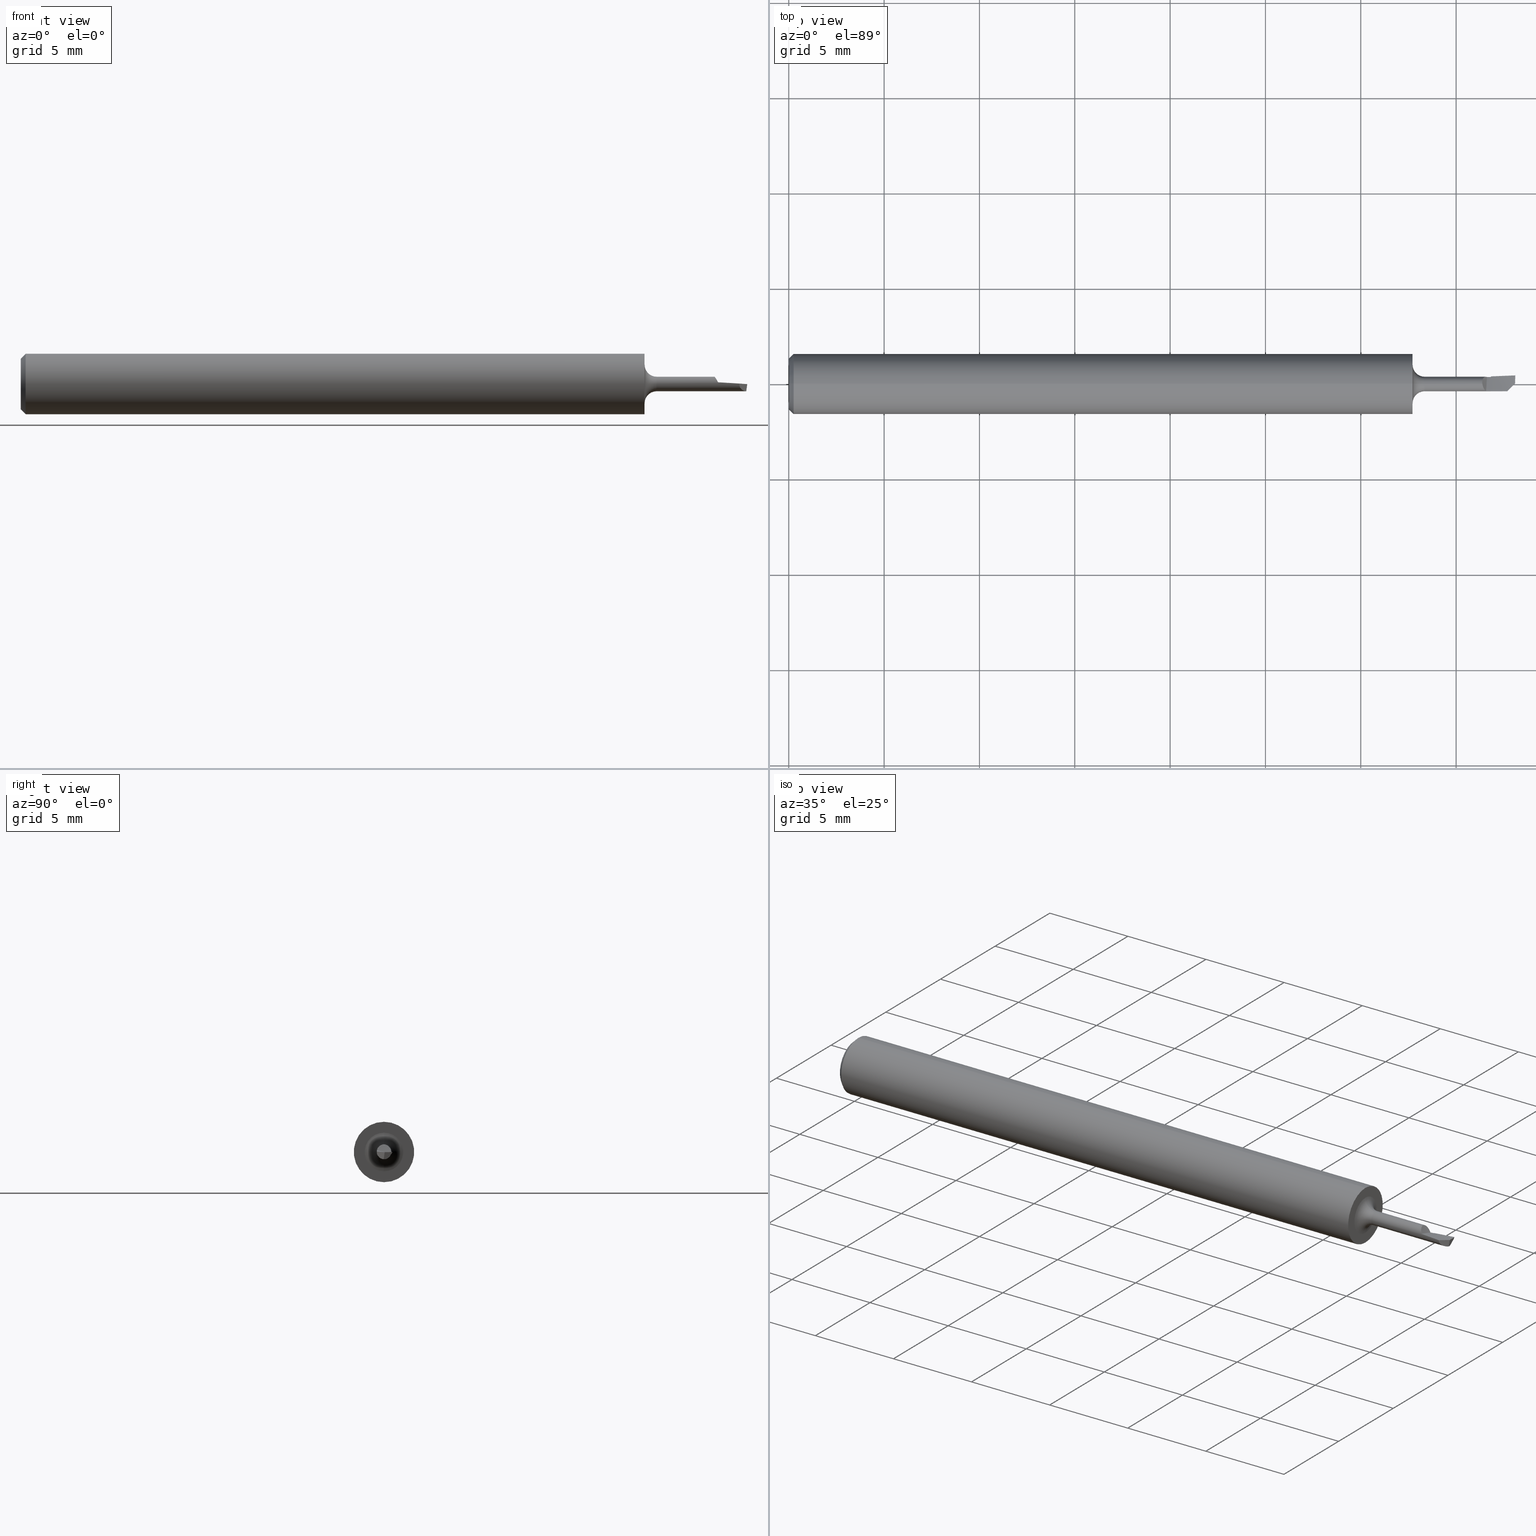
[diagram: canonical four-view strip — front | top / right | iso, engineering-drawing reading convention]
A machine part, canonical four-view strip (front | top / right | iso — engineering-drawing reading convention). The complete STEP part file that produces these views, byte-faithful:
ISO-10303-21;
HEADER;
FILE_DESCRIPTION (( 'STEP AP203' ),
    '1' );
FILE_NAME ('216312-HB035187.STEP',
    '2024-07-24T20:36:11',
    ( '' ),
    ( '' ),
    'SwSTEP 2.0',
    'SolidWorks 2024',
    '' );
FILE_SCHEMA (( 'CONFIG_CONTROL_DESIGN' ));
ENDSEC;

DATA;
#1 = CARTESIAN_POINT ( 'NONE',  ( 1.500000000000000222, 0.01774999999999999842, 0.000000000000000000 ) ) ;
#2 = CARTESIAN_POINT ( 'NONE',  ( 1.435394890187202677, 0.01353439872834002848, 0.006468021686865376221 ) ) ;
#3 = EDGE_LOOP ( 'NONE', ( #640, #265, #67, #182, #39 ) ) ;
#4 = CARTESIAN_POINT ( 'NONE',  ( 0.000000000000000000, 0.000000000000000000, 0.000000000000000000 ) ) ;
#5 = CARTESIAN_POINT ( 'NONE',  ( 1.497998842462915148, -0.0005061482301904098036, -0.01500000000000003240 ) ) ;
#6 = CARTESIAN_POINT ( 'NONE',  ( 1.486624605256464671, 0.003321861798267221593, -0.01500000000000003067 ) ) ;
#7 = EDGE_LOOP ( 'NONE', ( #637, #295, #261, #41 ) ) ;
#8 = CIRCLE ( 'NONE', #730, 0.06234999999999997489 ) ;
#9 = CARTESIAN_POINT ( 'NONE',  ( 1.313000000000000167, 0.000000000000000000, 0.000000000000000000 ) ) ;
#10 = ADVANCED_FACE ( 'NONE', ( #597 ), #202, .T. ) ;
#11 = EDGE_LOOP ( 'NONE', ( #190, #683, #173, #340, #692, #36 ) ) ;
#12 = ADVANCED_FACE ( 'NONE', ( #199 ), #188, .T. ) ;
#13 = DIRECTION ( 'NONE',  ( 0.000000000000000000, 0.000000000000000000, 1.000000000000000000 ) ) ;
#14 = ORIENTED_EDGE ( 'NONE', *, *, #97, .F. ) ;
#15 = CARTESIAN_POINT ( 'NONE',  ( 1.437037037037037113, 0.03685326716537166980, -0.01485981793594674458 ) ) ;
#16 = LOCAL_TIME ( 13, 36, 11.00000000000000000, #393 ) ;
#17 = CARTESIAN_POINT ( 'NONE',  ( 1.498003259551602628, 0.000000000000000000, -0.01500000000000003240 ) ) ;
#18 =( BOUNDED_CURVE ( )  B_SPLINE_CURVE ( 2, ( #162, #739, #444 ),
 .UNSPECIFIED., .F., .T. ) 
 B_SPLINE_CURVE_WITH_KNOTS ( ( 3, 3 ),
 ( 0.7681317573319887959, 0.8006296446964050739 ),
 .UNSPECIFIED. ) 
 CURVE ( )  GEOMETRIC_REPRESENTATION_ITEM ( )  RATIONAL_B_SPLINE_CURVE ( ( 0.9707016662722374178, 0.9708602721934029844, 0.9713031504698065310 ) ) 
 REPRESENTATION_ITEM ( '' )  );
#19 = ORIENTED_EDGE ( 'NONE', *, *, #362, .T. ) ;
#20 =( LENGTH_UNIT ( ) NAMED_UNIT ( * ) SI_UNIT ( $, .METRE. ) );
#21 = CIRCLE ( 'NONE', #716, 0.06235000000000000264 ) ;
#22 = CC_DESIGN_PERSON_AND_ORGANIZATION_ASSIGNMENT ( #431, #732, ( #64 ) ) ;
#23 = CARTESIAN_POINT ( 'NONE',  ( 1.500000000000000222, 0.01774999999999999842, 0.000000000000000000 ) ) ;
#24 = VERTEX_POINT ( 'NONE', #381 ) ;
#25 = EDGE_CURVE ( 'NONE', #55, #347, #605, .T. ) ;
#26 =( NAMED_UNIT ( * ) PLANE_ANGLE_UNIT ( ) SI_UNIT ( $, .RADIAN. ) );
#27 = CARTESIAN_POINT ( 'NONE',  ( 1.450000000000000178, 0.01570618614870872634, -0.003770721680463313182 ) ) ;
#28 = CARTESIAN_POINT ( 'NONE',  ( 1.432042811696058848, 0.001035874584596844887, 0.01497282673880373505 ) ) ;
#29 = CARTESIAN_POINT ( 'NONE',  ( 1.432000000000000162, 0.005704372090002314717, 0.01387300036253166086 ) ) ;
#30 = CARTESIAN_POINT ( 'NONE',  ( 1.434676559784487271, 0.01284527235986470013, 0.007772958168106454922 ) ) ;
#31 = DIRECTION ( 'NONE',  ( 0.000000000000000000, 0.000000000000000000, 1.000000000000000000 ) ) ;
#32 = CARTESIAN_POINT ( 'NONE',  ( 0.000000000000000000, 7.023349393110068342E-18, 0.05234999999999996600 ) ) ;
#33 = FACE_OUTER_BOUND ( 'NONE', #358, .T. ) ;
#34 = EDGE_CURVE ( 'NONE', #629, #347, #378, .T. ) ;
#35 = DIRECTION ( 'NONE',  ( 0.000000000000000000, 0.000000000000000000, 1.000000000000000000 ) ) ;
#36 = ORIENTED_EDGE ( 'NONE', *, *, #376, .T. ) ;
#37 = CARTESIAN_POINT ( 'NONE',  ( 1.435048143572538626, -0.009211310455437949837, 0.01183963071279994263 ) ) ;
#38 = CARTESIAN_POINT ( 'NONE',  ( 1.483332983595524457, -0.06990980842884071678, -0.07740900346876593285 ) ) ;
#39 = ORIENTED_EDGE ( 'NONE', *, *, #483, .F. ) ;
#40 = CARTESIAN_POINT ( 'NONE',  ( 1.288000000000000256, 0.000000000000000000, 0.000000000000000000 ) ) ;
#41 = ORIENTED_EDGE ( 'NONE', *, *, #518, .F. ) ;
#42 = B_SPLINE_CURVE_WITH_KNOTS ( 'NONE', 3,
 ( #228, #396, #519, #445, #691, #508, #116, #6, #636, #745 ),
 .UNSPECIFIED., .F., .F.,
 ( 4, 3, 3, 4 ),
 ( 0.000000000000000000, 0.0003578844065414704006, 0.0007157613694132819535, 0.001152233961308527909 ),
 .UNSPECIFIED. ) ;
#43 = CARTESIAN_POINT ( 'NONE',  ( 1.441682278788460891, 0.01453845696113276707, -0.003692325715492991451 ) ) ;
#44 = CARTESIAN_POINT ( 'NONE',  ( 1.483529953433141202, -0.01496977584811517471, 0.0009517410662662855163 ) ) ;
#45 = EDGE_LOOP ( 'NONE', ( #529, #354 ) ) ;
#46 =( NAMED_UNIT ( * ) SI_UNIT ( $, .STERADIAN. ) SOLID_ANGLE_UNIT ( ) );
#47 = CARTESIAN_POINT ( 'NONE',  ( 1.433809783495058054, -0.006452718478155158345, 0.01357158033387893467 ) ) ;
#48 = DIRECTION ( 'NONE',  ( 0.000000000000000000, -1.224646799147352961E-16, 1.000000000000000000 ) ) ;
#49 = CC_DESIGN_DATE_AND_TIME_ASSIGNMENT ( #314, #264, ( #321 ) ) ;
#50 = ORIENTED_EDGE ( 'NONE', *, *, #306, .F. ) ;
#51 = FACE_OUTER_BOUND ( 'NONE', #457, .T. ) ;
#52 = B_SPLINE_CURVE_WITH_KNOTS ( 'NONE', 3,
 ( #377, #317, #250, #268 ),
 .UNSPECIFIED., .F., .F.,
 ( 4, 4 ),
 ( 3.859803836872998555E-06, 0.0004024347465629918362 ),
 .UNSPECIFIED. ) ;
#53 = LINE ( 'NONE', #286, #197 ) ;
#54 = CIRCLE ( 'NONE', #644, 0.02499999999999993547 ) ;
#55 = VERTEX_POINT ( 'NONE', #718 ) ;
#56 = LINE ( 'NONE', #60, #747 ) ;
#57 = CARTESIAN_POINT ( 'NONE',  ( 0.01000000000000000021, 0.000000000000000000, 0.000000000000000000 ) ) ;
#58 = EDGE_CURVE ( 'NONE', #324, #160, #143, .T. ) ;
#59 = EDGE_LOOP ( 'NONE', ( #141, #577, #520, #333, #267, #95, #392 ) ) ;
#60 = CARTESIAN_POINT ( 'NONE',  ( 0.01000000000000000021, 0.000000000000000000, -0.06235000000000000264 ) ) ;
#61 = DIRECTION ( 'NONE',  ( 0.000000000000000000, 0.000000000000000000, -1.000000000000000000 ) ) ;
#62 = ORIENTED_EDGE ( 'NONE', *, *, #97, .T. ) ;
#63 = B_SPLINE_CURVE_WITH_KNOTS ( 'NONE', 3,
 ( #567, #391, #385, #400, #452, #282, #686, #112, #741, #171 ),
 .UNSPECIFIED., .F., .F.,
 ( 4, 3, 3, 4 ),
 ( 6.962001557573271019E-18, 0.0006369181891311866128, 0.0009554088573682942374, 0.001273908002081768596 ),
 .UNSPECIFIED. ) ;
#64 = PRODUCT_DEFINITION ( 'UNKNOWN', '', #249, #639 ) ;
#65 = AXIS2_PLACEMENT_3D ( 'NONE', #601, #191, #200 ) ;
#66 = CARTESIAN_POINT ( 'NONE',  ( 1.492939757183945337, -0.005559972097311152023, -0.05584218923168272203 ) ) ;
#67 = ORIENTED_EDGE ( 'NONE', *, *, #356, .F. ) ;
#68 = AXIS2_PLACEMENT_3D ( 'NONE', #82, #310, #539 ) ;
#69 = DIRECTION ( 'NONE',  ( -0.7071067811865454633, 0.7071067811865495711, 0.000000000000000000 ) ) ;
#70 = ORIENTED_EDGE ( 'NONE', *, *, #34, .F. ) ;
#71 = B_SPLINE_CURVE_WITH_KNOTS ( 'NONE', 3,
 ( #43, #441, #328, #685 ),
 .UNSPECIFIED., .F., .F.,
 ( 4, 4 ),
 ( 0.000000000000000000, 1.000000000000000000 ),
 .UNSPECIFIED. ) ;
#72 = DIRECTION ( 'NONE',  ( 0.000000000000000000, -0.6883545756937445859, -0.7253743710122965149 ) ) ;
#73 = ORIENTED_EDGE ( 'NONE', *, *, #296, .F. ) ;
#74 = EDGE_CURVE ( 'NONE', #217, #507, #313, .T. ) ;
#75 = DIRECTION ( 'NONE',  ( 0.000000000000000000, 0.000000000000000000, 1.000000000000000000 ) ) ;
#76 = VERTEX_POINT ( 'NONE', #439 ) ;
#77 = EDGE_CURVE ( 'NONE', #736, #607, #213, .T. ) ;
#78 = AXIS2_PLACEMENT_3D ( 'NONE', #472, #79, #13 ) ;
#79 = DIRECTION ( 'NONE',  ( -1.000000000000000000, -0.000000000000000000, -0.000000000000000000 ) ) ;
#80 = CARTESIAN_POINT ( 'NONE',  ( 1.450000000000000178, 0.09019355119919389430, 0.02976720383432897993 ) ) ;
#81 = CYLINDRICAL_SURFACE ( 'NONE', #435, 0.01500000000000003240 ) ;
#82 = CARTESIAN_POINT ( 'NONE',  ( 1.313000000000000167, 0.000000000000000000, 0.000000000000000000 ) ) ;
#83 = EDGE_CURVE ( 'NONE', #132, #723, #280, .T. ) ;
#84 = CARTESIAN_POINT ( 'NONE',  ( 1.450000000000000178, 0.01570618614870872634, -0.003770721680463313182 ) ) ;
#85 = CARTESIAN_POINT ( 'NONE',  ( 0.000000000000000000, 0.000000000000000000, 0.000000000000000000 ) ) ;
#86 = PERSON_AND_ORGANIZATION ( #246, #158 ) ;
#87 = AXIS2_PLACEMENT_3D ( 'NONE', #85, #613, #35 ) ;
#88 = EDGE_CURVE ( 'NONE', #607, #361, #588, .T. ) ;
#89 = FACE_OUTER_BOUND ( 'NONE', #659, .T. ) ;
#90 = CALENDAR_DATE ( 2024, 24, 7 ) ;
#91 = CARTESIAN_POINT ( 'NONE',  ( 1.483333295850198574, 0.01721749227826473855, -0.001394084887595474845 ) ) ;
#92 = CARTESIAN_POINT ( 'NONE',  ( 1.450000000000000178, -0.08194881496915611130, -0.06501582139244883873 ) ) ;
#93 = EDGE_CURVE ( 'NONE', #401, #24, #729, .T. ) ;
#94 = COORDINATED_UNIVERSAL_TIME_OFFSET ( 8, 0, .BEHIND. ) ;
#95 = ORIENTED_EDGE ( 'NONE', *, *, #208, .F. ) ;
#96 = CARTESIAN_POINT ( 'NONE',  ( 1.288000000000000256, 0.000000000000000000, 0.000000000000000000 ) ) ;
#97 = EDGE_CURVE ( 'NONE', #413, #361, #53, .T. ) ;
#98 = ORIENTED_EDGE ( 'NONE', *, *, #223, .F. ) ;
#99 = PERSON_AND_ORGANIZATION ( #246, #158 ) ;
#100 = CIRCLE ( 'NONE', #195, 0.05234999999999996600 ) ;
#101 = CARTESIAN_POINT ( 'NONE',  ( 1.432754109844076140, -0.003186430497608945880, 0.01475888696545138087 ) ) ;
#102 = LINE ( 'NONE', #5, #352 ) ;
#103 = ORIENTED_EDGE ( 'NONE', *, *, #408, .T. ) ;
#104 = PERSON_AND_ORGANIZATION_ROLE ( 'creator' ) ;
#105 = FACE_OUTER_BOUND ( 'NONE', #468, .T. ) ;
#106 = ORIENTED_EDGE ( 'NONE', *, *, #518, .T. ) ;
#107 = PLANE ( 'NONE',  #617 ) ;
#108 = CC_DESIGN_PERSON_AND_ORGANIZATION_ASSIGNMENT ( #260, #166, ( #249 ) ) ;
#109 = CARTESIAN_POINT ( 'NONE',  ( 1.435087202012116592, 0.01325970702525479383, 0.007020425083616691972 ) ) ;
#110 = EDGE_CURVE ( 'NONE', #607, #413, #63, .T. ) ;
#111 = DIRECTION ( 'NONE',  ( 0.000000000000000000, 0.000000000000000000, 1.000000000000000000 ) ) ;
#112 = CARTESIAN_POINT ( 'NONE',  ( 1.458336174513955585, 0.01616764121216210381, -0.002892807423937912830 ) ) ;
#113 = CONICAL_SURFACE ( 'NONE', #620, 0.06235000000000000264, 0.7853981633974502774 ) ;
#114 = ORIENTED_EDGE ( 'NONE', *, *, #326, .F. ) ;
#115 = CARTESIAN_POINT ( 'NONE',  ( 0.000000000000000000, 7.635672792683743590E-18, -0.06234999999999997489 ) ) ;
#116 = CARTESIAN_POINT ( 'NONE',  ( 1.480919690175974690, 0.002807819387573498495, -0.01500000000000003067 ) ) ;
#117 = ORIENTED_EDGE ( 'NONE', *, *, #677, .T. ) ;
#118 = ORIENTED_EDGE ( 'NONE', *, *, #130, .T. ) ;
#119 = EDGE_CURVE ( 'NONE', #687, #217, #568, .T. ) ;
#120 = CARTESIAN_POINT ( 'NONE',  ( 1.452880678092314914, 4.001730459469135574E-19, -0.01500000000000003240 ) ) ;
#121 = ORIENTED_EDGE ( 'NONE', *, *, #74, .T. ) ;
#122 = CARTESIAN_POINT ( 'NONE',  ( 1.450000000000000178, 0.01503606013463771283, -0.003261340739999056115 ) ) ;
#123 = ORIENTED_EDGE ( 'NONE', *, *, #177, .T. ) ;
#124 = B_SPLINE_CURVE_WITH_KNOTS ( 'NONE', 3,
 ( #293, #464, #234, #297 ),
 .UNSPECIFIED., .F., .F.,
 ( 4, 4 ),
 ( 6.526186367125772189E-06, 0.0005924923434669416471 ),
 .UNSPECIFIED. ) ;
#125 = AXIS2_PLACEMENT_3D ( 'NONE', #216, #522, #706 ) ;
#126 = PRODUCT ( '216312-HB035187', '216312-HB035187', '', ( #148 ) ) ;
#127 = DIRECTION ( 'NONE',  ( -0.7071067811865495711, -0.7071067811865454633, 0.000000000000000000 ) ) ;
#128 = ORIENTED_EDGE ( 'NONE', *, *, #208, .T. ) ;
#129 = CARTESIAN_POINT ( 'NONE',  ( 1.288000000000000256, 4.898587196589413537E-18, -0.04000000000000000083 ) ) ;
#130 = EDGE_CURVE ( 'NONE', #587, #160, #303, .T. ) ;
#131 = DIRECTION ( 'NONE',  ( 1.000000000000000000, 0.000000000000000000, 0.000000000000000000 ) ) ;
#132 = VERTEX_POINT ( 'NONE', #573 ) ;
#133 = CARTESIAN_POINT ( 'NONE',  ( 1.248148148148148895, 0.01502180518211887472, -0.03532069397823376505 ) ) ;
#134 = LOCAL_TIME ( 13, 36, 11.00000000000000000, #94 ) ;
#135 = DIRECTION ( 'NONE',  ( 0.000000000000000000, 0.000000000000000000, 1.000000000000000000 ) ) ;
#136 = CARTESIAN_POINT ( 'NONE',  ( 1.482959009056721511, -0.01554072022453476844, -0.008028547417331043448 ) ) ;
#137 = AXIS2_PLACEMENT_3D ( 'NONE', #433, #724, #204 ) ;
#138 = CARTESIAN_POINT ( 'NONE',  ( 1.500000000000000222, 0.01544059892324156635, -0.004000000000000000083 ) ) ;
#139 = DIRECTION ( 'NONE',  ( 0.000000000000000000, -0.2334453638559059185, -0.9723699203976764460 ) ) ;
#140 = ADVANCED_FACE ( 'NONE', ( #278 ), #344, .F. ) ;
#141 = ORIENTED_EDGE ( 'NONE', *, *, #382, .F. ) ;
#142 = CARTESIAN_POINT ( 'NONE',  ( 1.500000000000000222, 0.01774999999999999842, 0.000000000000000000 ) ) ;
#143 = LINE ( 'NONE', #546, #341 ) ;
#144 = EDGE_CURVE ( 'NONE', #629, #270, #42, .T. ) ;
#145 = CARTESIAN_POINT ( 'NONE',  ( 1.374074074074074447, -0.03532069397823356383, 0.01502180518211876890 ) ) ;
#146 = CARTESIAN_POINT ( 'NONE',  ( 1.432000000000000162, 0.005704372090002314717, 0.01387300036253166086 ) ) ;
#147 = DIRECTION ( 'NONE',  ( 1.000000000000000000, -0.000000000000000000, -0.000000000000000000 ) ) ;
#148 = MECHANICAL_CONTEXT ( 'NONE', #151, 'mechanical' ) ;
#149 = VECTOR ( 'NONE', #147, 39.37007874015748143 ) ;
#150 = CARTESIAN_POINT ( 'NONE',  ( 1.439818867927538326, -0.01455439994882645575, 0.003628972599735443439 ) ) ;
#151 = APPLICATION_CONTEXT ( 'configuration controlled 3d designs of mechanical parts and assemblies' ) ;
#152 = ADVANCED_FACE ( 'NONE', ( #105 ), #113, .T. ) ;
#153 = DATE_AND_TIME ( #557, #289 ) ;
#154 = CARTESIAN_POINT ( 'NONE',  ( 1.499817992008511514, 0.001318262727255870926, -0.0003144444345051258219 ) ) ;
#155 = CARTESIAN_POINT ( 'NONE',  ( 1.450000000000000178, 0.01570618614870872634, -0.003770721680463313182 ) ) ;
#156 = UNCERTAINTY_MEASURE_WITH_UNIT (LENGTH_MEASURE( 1.000000000000000082E-05 ), #364, 'distance_accuracy_value', 'NONE');
#157 = CARTESIAN_POINT ( 'NONE',  ( 1.432000000000000162, -0.01178763634953161436, 0.01857638937384378103 ) ) ;
#158 = ORGANIZATION ( 'UNSPECIFIED', 'UNSPECIFIED', '' ) ;
#159 = CARTESIAN_POINT ( 'NONE',  ( 1.432000000000000162, 0.005704372090002314717, 0.01387300036253166086 ) ) ;
#160 = VERTEX_POINT ( 'NONE', #456 ) ;
#161 = CIRCLE ( 'NONE', #252, 0.01500000000000003240 ) ;
#162 = CARTESIAN_POINT ( 'NONE',  ( 1.441682278788460891, 0.01453845696113276707, -0.003692325715492991451 ) ) ;
#163 = AXIS2_PLACEMENT_3D ( 'NONE', #655, #530, #31 ) ;
#164 = DIRECTION ( 'NONE',  ( 1.000000000000000000, 0.000000000000000000, -0.000000000000000000 ) ) ;
#165 = ORIENTED_EDGE ( 'NONE', *, *, #585, .T. ) ;
#166 = PERSON_AND_ORGANIZATION_ROLE ( 'design_supplier' ) ;
#167 = DIRECTION ( 'NONE',  ( -1.000000000000000000, -0.000000000000000000, -0.000000000000000000 ) ) ;
#168 = LINE ( 'NONE', #628, #325 ) ;
#169 = EDGE_CURVE ( 'NONE', #270, #347, #102, .T. ) ;
#170 = DIRECTION ( 'NONE',  ( 0.000000000000000000, 0.000000000000000000, 1.000000000000000000 ) ) ;
#171 = CARTESIAN_POINT ( 'NONE',  ( 1.450000000000000178, 0.01579589541770331368, -0.003397055682937622206 ) ) ;
#172 = MANIFOLD_SOLID_BREP ( 'Front Angle', #411 ) ;
#173 = ORIENTED_EDGE ( 'NONE', *, *, #362, .F. ) ;
#174 = CARTESIAN_POINT ( 'NONE',  ( 1.483529953433141202, -0.01496977584811517645, 0.0009517410662662855163 ) ) ;
#175 = CARTESIAN_POINT ( 'NONE',  ( 1.288000000000000256, 0.000000000000000000, 0.000000000000000000 ) ) ;
#176 = CIRCLE ( 'NONE', #696, 0.04000000000000000083 ) ;
#177 = EDGE_CURVE ( 'NONE', #587, #217, #168, .T. ) ;
#178 = ORIENTED_EDGE ( 'NONE', *, *, #93, .T. ) ;
#179 = DIRECTION ( 'NONE',  ( -1.000000000000000000, -0.000000000000000000, -0.000000000000000000 ) ) ;
#180 = ORIENTED_EDGE ( 'NONE', *, *, #88, .F. ) ;
#181 = CARTESIAN_POINT ( 'NONE',  ( 1.450000000000000178, 0.01570618614870872634, -0.003770721680463313182 ) ) ;
#182 = ORIENTED_EDGE ( 'NONE', *, *, #58, .F. ) ;
#183 = PRODUCT_DEFINITION_SHAPE ( 'NONE', 'NONE',  #64 ) ;
#184 = CC_DESIGN_PERSON_AND_ORGANIZATION_ASSIGNMENT ( #330, #561, ( #321 ) ) ;
#185 = PLANE ( 'NONE',  #580 ) ;
#186 = EDGE_LOOP ( 'NONE', ( #625, #14, #582 ) ) ;
#187 = CARTESIAN_POINT ( 'NONE',  ( 1.311111111111111560, 0.09137519861340727412, -0.07311661784731939007 ) ) ;
#188 = B_SPLINE_SURFACE_WITH_KNOTS ( 'NONE', 1, 3, ( 
 ( #429, #251, #425, #309 ),
 ( #484, #38, #490, #92 ) ),
 .UNSPECIFIED., .F., .F., .F.,
 ( 2, 2 ),
 ( 4, 4 ),
 ( 0.000000000000000000, 1.000000000000000000 ),
 ( 0.000000000000000000, 1.000000000000000000 ),
 .UNSPECIFIED. ) ;
#189 = PLANE ( 'NONE',  #402 ) ;
#190 = ORIENTED_EDGE ( 'NONE', *, *, #77, .T. ) ;
#191 = DIRECTION ( 'NONE',  ( -0.9925083585251990304, 0.008661489226063941518, 0.1218693434051474900 ) ) ;
#192 = CARTESIAN_POINT ( 'NONE',  ( 1.500000000000000222, 0.01774999999999999842, 0.04999999999999999584 ) ) ;
#193 = CARTESIAN_POINT ( 'NONE',  ( 1.500000000000000000, -0.03809952085550569190, -0.004651082090701197380 ) ) ;
#194 = CARTESIAN_POINT ( 'NONE',  ( 1.431999999999999940, 0.004315100735487202924, 0.01421531127216837422 ) ) ;
#195 = AXIS2_PLACEMENT_3D ( 'NONE', #623, #342, #403 ) ;
#196 = FACE_OUTER_BOUND ( 'NONE', #7, .T. ) ;
#197 = VECTOR ( 'NONE', #697, 39.37007874015748143 ) ;
#198 = CARTESIAN_POINT ( 'NONE',  ( 1.450000000000000400, 0.01499999999999999944, 0.000000000000000000 ) ) ;
#199 = FACE_OUTER_BOUND ( 'NONE', #3, .T. ) ;
#200 = DIRECTION ( 'NONE',  ( 0.1218739150664907706, 0.000000000000000000, 0.9925455903012041503 ) ) ;
#201 = CARTESIAN_POINT ( 'NONE',  ( 1.313000000000000167, 0.000000000000000000, 0.04000000000000000083 ) ) ;
#202 = CYLINDRICAL_SURFACE ( 'NONE', #87, 0.06234999999999997489 ) ;
#203 = APPROVAL_STATUS ( 'not_yet_approved' ) ;
#204 = DIRECTION ( 'NONE',  ( 0.000000000000000000, 0.000000000000000000, 1.000000000000000000 ) ) ;
#205 = CC_DESIGN_APPROVAL ( #654, ( #249 ) ) ;
#206 = PERSON_AND_ORGANIZATION ( #246, #158 ) ;
#207 = ORIENTED_EDGE ( 'NONE', *, *, #515, .T. ) ;
#208 = EDGE_CURVE ( 'NONE', #656, #536, #688, .T. ) ;
#209 = AXIS2_PLACEMENT_3D ( 'NONE', #316, #725, #269 ) ;
#210 = CARTESIAN_POINT ( 'NONE',  ( 1.436168963713213342, -0.01131927870987984447, 0.01016358373328416810 ) ) ;
#211 = CARTESIAN_POINT ( 'NONE',  ( 1.483333295850198574, 0.01721749227826473855, -0.001394084887595474845 ) ) ;
#212 = DIRECTION ( 'NONE',  ( 0.7071067811865461294, 8.659560562354950115E-17, 0.7071067811865489050 ) ) ;
#213 = B_SPLINE_CURVE_WITH_KNOTS ( 'NONE', 3,
 ( #371, #312, #499, #442, #494, #434, #731, #676, #721, #661 ),
 .UNSPECIFIED., .F., .F.,
 ( 4, 3, 3, 4 ),
 ( 9.772866314664846121E-20, 2.979974515905249436E-05, 7.449951301404345667E-05, 0.0001191994272177495208 ),
 .UNSPECIFIED. ) ;
#214 = APPROVAL_ROLE ( '' ) ;
#215 = FACE_OUTER_BOUND ( 'NONE', #446, .T. ) ;
#216 = CARTESIAN_POINT ( 'NONE',  ( 1.288000000000000256, 0.000000000000000000, 0.000000000000000000 ) ) ;
#217 = VERTEX_POINT ( 'NONE', #694 ) ;
#218 = EDGE_CURVE ( 'NONE', #298, #695, #8, .T. ) ;
#219 = CONICAL_SURFACE ( 'NONE', #449, 0.06235000000000000264, 0.7853981633974502774 ) ;
#220 = LINE ( 'NONE', #277, #681 ) ;
#221 = TOROIDAL_SURFACE ( 'NONE', #68, 0.04000000000000000083, 0.02499999999999993547 ) ;
#222 = DIRECTION ( 'NONE',  ( -1.000000000000000000, -0.000000000000000000, -0.000000000000000000 ) ) ;
#223 = EDGE_CURVE ( 'NONE', #695, #298, #375, .T. ) ;
#224 = CARTESIAN_POINT ( 'NONE',  ( 1.433518398743692135, -0.005637682489700022483, 0.01392699023799098823 ) ) ;
#225 = DIRECTION ( 'NONE',  ( 0.000000000000000000, -0.000000000000000000, 1.000000000000000000 ) ) ;
#226 = ORIENTED_EDGE ( 'NONE', *, *, #77, .F. ) ;
#227 = DIRECTION ( 'NONE',  ( 1.000000000000000000, 0.000000000000000000, 0.000000000000000000 ) ) ;
#228 = CARTESIAN_POINT ( 'NONE',  ( 1.452880678092314914, 4.001730459469135574E-19, -0.01500000000000003240 ) ) ;
#229 = CC_DESIGN_APPROVAL ( #663, ( #321 ) ) ;
#230 = DIRECTION ( 'NONE',  ( 0.000000000000000000, 0.000000000000000000, -1.000000000000000000 ) ) ;
#231 = ORIENTED_EDGE ( 'NONE', *, *, #533, .T. ) ;
#232 = CARTESIAN_POINT ( 'NONE',  ( 1.450000000000000178, 0.01252681255211120052, -0.007121082387400924640 ) ) ;
#233 = ORIENTED_EDGE ( 'NONE', *, *, #483, .T. ) ;
#234 = CARTESIAN_POINT ( 'NONE',  ( 1.488941653084880690, -0.009558076196375395531, 7.005194061564933179E-05 ) ) ;
#235 = ORIENTED_EDGE ( 'NONE', *, *, #585, .F. ) ;
#236 = B_SPLINE_SURFACE_WITH_KNOTS ( 'NONE', 1, 3, ( 
 ( #192, #467, #591, #701 ),
 ( #23, #528, #248, #181 ) ),
 .UNSPECIFIED., .F., .F., .F.,
 ( 2, 2 ),
 ( 4, 4 ),
 ( 0.000000000000000000, 1.000000000000000000 ),
 ( 0.000000000000000000, 1.000000000000000000 ),
 .UNSPECIFIED. ) ;
#237 = CC_DESIGN_PERSON_AND_ORGANIZATION_ASSIGNMENT ( #99, #606, ( #126 ) ) ;
#238 = DIRECTION ( 'NONE',  ( 1.000000000000000000, 0.000000000000000000, 0.000000000000000000 ) ) ;
#239 = FACE_OUTER_BOUND ( 'NONE', #45, .T. ) ;
#240 = ORIENTED_EDGE ( 'NONE', *, *, #296, .T. ) ;
#241 = TOROIDAL_SURFACE ( 'NONE', #603, 0.04000000000000000083, 0.02499999999999993547 ) ;
#242 = ADVANCED_FACE ( 'NONE', ( #647 ), #241, .F. ) ;
#243 = LENGTH_MEASURE_WITH_UNIT ( LENGTH_MEASURE( 0.02539999999999999897 ), #20 );
#244 = B_SPLINE_SURFACE_WITH_KNOTS ( 'NONE', 1, 3, ( 
 ( #142, #91, #370, #84 ),
 ( #138, #421, #598, #545 ) ),
 .UNSPECIFIED., .F., .F., .F.,
 ( 2, 2 ),
 ( 4, 4 ),
 ( 0.000000000000000000, 1.000000000000000000 ),
 ( 0.000000000000000000, 1.000000000000000000 ),
 .UNSPECIFIED. ) ;
#245 = CARTESIAN_POINT ( 'NONE',  ( 1.450960253075775919, -0.0002167109636360160384, -0.01499882324169561805 ) ) ;
#246 = PERSON ( 'UNSPECIFIED', 'UNSPECIFIED', 'UNSPECIFIED', ('UNSPECIFIED'), ('UNSPECIFIED'), ('UNSPECIFIED') ) ;
#247 = CARTESIAN_POINT ( 'NONE',  ( 1.248148148148148895, -0.04537493351759626370, 0.1035333754060629857 ) ) ;
#248 = CARTESIAN_POINT ( 'NONE',  ( 1.466666674656965208, 0.01652013165634515224, -0.002661471341520176177 ) ) ;
#249 = PRODUCT_DEFINITION_FORMATION_WITH_SPECIFIED_SOURCE ( 'ANY', '', #126, .NOT_KNOWN. ) ;
#250 = CARTESIAN_POINT ( 'NONE',  ( 1.498999930842128459, 0.01172791227890680396, -0.007716598154219008951 ) ) ;
#251 = CARTESIAN_POINT ( 'NONE',  ( 1.483333294192916263, 0.01459393114264781639, -0.005212704662237843851 ) ) ;
#252 = AXIS2_PLACEMENT_3D ( 'NONE', #497, #332, #345 ) ;
#253 = CARTESIAN_POINT ( 'NONE',  ( 1.437037037037037335, -0.1090084478012806196, 0.04257493435139970972 ) ) ;
#254 = FACE_OUTER_BOUND ( 'NONE', #500, .T. ) ;
#255 = DIRECTION ( 'NONE',  ( 0.000000000000000000, -0.8526401643540895137, -0.5224985647159531288 ) ) ;
#256 = EDGE_CURVE ( 'NONE', #132, #413, #524, .T. ) ;
#257 = APPROVAL_DATE_TIME ( #552, #663 ) ;
#258 = CYLINDRICAL_SURFACE ( 'NONE', #137, 0.06234999999999997489 ) ;
#259 = ADVANCED_FACE ( 'NONE', ( #476 ), #185, .F. ) ;
#260 = PERSON_AND_ORGANIZATION ( #246, #158 ) ;
#261 = ORIENTED_EDGE ( 'NONE', *, *, #130, .F. ) ;
#262 = CARTESIAN_POINT ( 'NONE',  ( 1.431999999999999718, 0.002927434676799736506, 0.01456452250062190493 ) ) ;
#263 = CARTESIAN_POINT ( 'NONE',  ( 1.497999920531684737, -0.0004998087495719157362, -0.01499167072790263261 ) ) ;
#264 = DATE_TIME_ROLE ( 'classification_date' ) ;
#265 = ORIENTED_EDGE ( 'NONE', *, *, #144, .F. ) ;
#266 = DIMENSIONAL_EXPONENTS ( 1.000000000000000000, 0.000000000000000000, 0.000000000000000000, 0.000000000000000000, 0.000000000000000000, 0.000000000000000000, 0.000000000000000000 ) ;
#267 = ORIENTED_EDGE ( 'NONE', *, *, #626, .T. ) ;
#268 = CARTESIAN_POINT ( 'NONE',  ( 1.499483855044357661, 0.01541433301773258505, -0.004037503371795578277 ) ) ;
#269 = DIRECTION ( 'NONE',  ( 0.000000000000000000, 0.000000000000000000, 1.000000000000000000 ) ) ;
#270 = VERTEX_POINT ( 'NONE', #534 ) ;
#271 = COORDINATED_UNIVERSAL_TIME_OFFSET ( 8, 0, .BEHIND. ) ;
#272 = LINE ( 'NONE', #733, #645 ) ;
#273 = DIRECTION ( 'NONE',  ( 1.000000000000000000, 0.000000000000000000, 0.000000000000000000 ) ) ;
#274 = ORIENTED_EDGE ( 'NONE', *, *, #515, .F. ) ;
#275 = APPROVAL_STATUS ( 'not_yet_approved' ) ;
#276 = EDGE_CURVE ( 'NONE', #361, #723, #578, .T. ) ;
#277 = CARTESIAN_POINT ( 'NONE',  ( 0.01000000000000000021, 7.635672792683746671E-18, 0.06235000000000000264 ) ) ;
#278 = FACE_OUTER_BOUND ( 'NONE', #509, .T. ) ;
#279 = ORIENTED_EDGE ( 'NONE', *, *, #458, .F. ) ;
#280 = CIRCLE ( 'NONE', #448, 0.01499999999999999944 ) ;
#281 = CARTESIAN_POINT ( 'NONE',  ( 1.432391071050306941, -0.001547547568372051492, 0.01499954651350355987 ) ) ;
#282 = CARTESIAN_POINT ( 'NONE',  ( 1.466671380316093343, 0.01652137230453218017, -0.002362452822304308541 ) ) ;
#283 = ORIENTED_EDGE ( 'NONE', *, *, #356, .T. ) ;
#284 = ORIENTED_EDGE ( 'NONE', *, *, #677, .F. ) ;
#285 = CARTESIAN_POINT ( 'NONE',  ( 0.01000000000000000021, 0.000000000000000000, 0.000000000000000000 ) ) ;
#286 = CARTESIAN_POINT ( 'NONE',  ( 1.450000000000000178, 0.02737845434150402643, 0.04484777433942049862 ) ) ;
#287 = CARTESIAN_POINT ( 'NONE',  ( 1.436706625457483844, 0.01448543846997051715, 0.004247971197371467819 ) ) ;
#288 = ORIENTED_EDGE ( 'NONE', *, *, #218, .T. ) ;
#289 = LOCAL_TIME ( 13, 36, 11.00000000000000000, #271 ) ;
#290 = DIRECTION ( 'NONE',  ( 0.1220122463319275319, 0.1220122463319268102, 0.9850005195379716305 ) ) ;
#291 = VECTOR ( 'NONE', #406, 39.37007874015748854 ) ;
#292 = ORIENTED_EDGE ( 'NONE', *, *, #533, .F. ) ;
#293 = CARTESIAN_POINT ( 'NONE',  ( 1.499817992008511514, 0.001318262727255870926, -0.0003144444345051258219 ) ) ;
#294 = CC_DESIGN_PERSON_AND_ORGANIZATION_ASSIGNMENT ( #388, #104, ( #249 ) ) ;
#295 = ORIENTED_EDGE ( 'NONE', *, *, #58, .T. ) ;
#296 = EDGE_CURVE ( 'NONE', #76, #507, #301, .T. ) ;
#297 = CARTESIAN_POINT ( 'NONE',  ( 1.483529953433141202, -0.01496977584811517645, 0.0009517410662662855163 ) ) ;
#298 = VERTEX_POINT ( 'NONE', #357 ) ;
#299 = LOCAL_TIME ( 13, 36, 11.00000000000000000, #737 ) ;
#300 = B_SPLINE_CURVE_WITH_KNOTS ( 'NONE', 3,
 ( #29, #194, #262, #308 ),
 .UNSPECIFIED., .F., .F.,
 ( 4, 4 ),
 ( 0.000000000000000000, 1.000000000000000000 ),
 .UNSPECIFIED. ) ;
#301 = LINE ( 'NONE', #641, #667 ) ;
#302 = ORIENTED_EDGE ( 'NONE', *, *, #304, .F. ) ;
#303 = CIRCLE ( 'NONE', #511, 0.01500000000000003240 ) ;
#304 = EDGE_CURVE ( 'NONE', #707, #327, #21, .T. ) ;
#305 = CARTESIAN_POINT ( 'NONE',  ( 1.469357864376268807, -0.02914186490498752585, -0.04999999999999998890 ) ) ;
#306 = EDGE_CURVE ( 'NONE', #465, #405, #705, .T. ) ;
#307 = CARTESIAN_POINT ( 'NONE',  ( 1.437037037037037335, 0.1156915521987189888, -0.01763324918787362305 ) ) ;
#308 = CARTESIAN_POINT ( 'NONE',  ( 1.432000000000000162, 0.001541682874665117843, 0.01492056345832707721 ) ) ;
#309 = CARTESIAN_POINT ( 'NONE',  ( 1.450000000000000178, 0.01252681255211120052, -0.007121082387400925508 ) ) ;
#310 = DIRECTION ( 'NONE',  ( -1.000000000000000000, -0.000000000000000000, -0.000000000000000000 ) ) ;
#311 = DIRECTION ( 'NONE',  ( 0.000000000000000000, 0.000000000000000000, 1.000000000000000000 ) ) ;
#312 = CARTESIAN_POINT ( 'NONE',  ( 1.499526816735231582, 0.01560978839433431985, -0.003701513191606923929 ) ) ;
#313 = CIRCLE ( 'NONE', #209, 0.01500000000000006710 ) ;
#314 = DATE_AND_TIME ( #319, #630 ) ;
#315 = FACE_OUTER_BOUND ( 'NONE', #463, .T. ) ;
#316 = CARTESIAN_POINT ( 'NONE',  ( 1.313000000000000167, 0.000000000000000000, 0.000000000000000000 ) ) ;
#317 = CARTESIAN_POINT ( 'NONE',  ( 1.498518843513662491, 0.008016093701394657808, -0.01137078472502144576 ) ) ;
#318 = DIRECTION ( 'NONE',  ( 0.000000000000000000, 0.000000000000000000, 1.000000000000000000 ) ) ;
#319 = CALENDAR_DATE ( 2024, 24, 7 ) ;
#320 = VERTEX_POINT ( 'NONE', #412 ) ;
#321 = SECURITY_CLASSIFICATION ( '', '', #621 ) ;
#322 = DIRECTION ( 'NONE',  ( 0.000000000000000000, -1.000000000000000000, 0.000000000000000000 ) ) ;
#323 = CARTESIAN_POINT ( 'NONE',  ( 1.432524577694745060, 0.008916079825167093006, 0.01220787235223501355 ) ) ;
#324 = VERTEX_POINT ( 'NONE', #232 ) ;
#325 = VECTOR ( 'NONE', #559, 39.37007874015748143 ) ;
#326 = EDGE_CURVE ( 'NONE', #723, #324, #710, .T. ) ;
#327 = VERTEX_POINT ( 'NONE', #531 ) ;
#328 = CARTESIAN_POINT ( 'NONE',  ( 1.440439363341831536, -0.004954305305070962409, 0.0008247637721231600638 ) ) ;
#329 = DIRECTION ( 'NONE',  ( -0.000000000000000000, 1.000000000000000000, 1.224646799147353207E-16 ) ) ;
#330 = PERSON_AND_ORGANIZATION ( #246, #158 ) ;
#331 = EDGE_CURVE ( 'NONE', #451, #656, #124, .T. ) ;
#332 = DIRECTION ( 'NONE',  ( -1.000000000000000000, -0.000000000000000000, -0.000000000000000000 ) ) ;
#333 = ORIENTED_EDGE ( 'NONE', *, *, #646, .F. ) ;
#334 = CARTESIAN_POINT ( 'NONE',  ( 1.435969324519954737, 0.01400123832682360035, 0.005451905998594549010 ) ) ;
#335 = EDGE_LOOP ( 'NONE', ( #103, #611 ) ) ;
#336 = CARTESIAN_POINT ( 'NONE',  ( 1.288000000000000256, 0.1123499999999999499, 0.000000000000000000 ) ) ;
#337 = CC_DESIGN_APPROVAL ( #427, ( #64 ) ) ;
#338 = CARTESIAN_POINT ( 'NONE',  ( 1.435270800402000946, 0.01342605994177297098, 0.006690005076184341558 ) ) ;
#339 = B_SPLINE_CURVE_WITH_KNOTS ( 'NONE', 3,
 ( #374, #664, #480, #602 ),
 .UNSPECIFIED., .F., .F.,
 ( 4, 4 ),
 ( 0.01032287543554559137, 1.000000000000000000 ),
 .UNSPECIFIED. ) ;
#340 = ORIENTED_EDGE ( 'NONE', *, *, #25, .T. ) ;
#341 = VECTOR ( 'NONE', #255, 39.37007874015748854 ) ;
#342 = DIRECTION ( 'NONE',  ( -1.000000000000000000, -0.000000000000000000, -0.000000000000000000 ) ) ;
#343 = ADVANCED_FACE ( 'NONE', ( #415 ), #236, .T. ) ;
#344 = PLANE ( 'NONE',  #422 ) ;
#345 = DIRECTION ( 'NONE',  ( 0.000000000000000000, 0.000000000000000000, -1.000000000000000000 ) ) ;
#346 = CARTESIAN_POINT ( 'NONE',  ( 1.461876997276741807, -0.01488347263640724463, 0.002309189830464820296 ) ) ;
#347 = VERTEX_POINT ( 'NONE', #17 ) ;
#348 = ORIENTED_EDGE ( 'NONE', *, *, #712, .F. ) ;
#349 = LINE ( 'NONE', #66, #590 ) ;
#350 = ORIENTED_EDGE ( 'NONE', *, *, #408, .F. ) ;
#351 = ADVANCED_FACE ( 'NONE', ( #239 ), #189, .F. ) ;
#352 = VECTOR ( 'NONE', #632, 39.37007874015748854 ) ;
#353 = CARTESIAN_POINT ( 'NONE',  ( 1.450000000000000400, 0.01465625742467634510, -0.003192822940358277899 ) ) ;
#354 = ORIENTED_EDGE ( 'NONE', *, *, #643, .T. ) ;
#355 = B_SPLINE_SURFACE_WITH_KNOTS ( 'NONE', 1, 3, ( 
 ( #157, #503, #675, #517 ),
 ( #399, #395, #631, #512 ) ),
 .UNSPECIFIED., .F., .F., .F.,
 ( 2, 2 ),
 ( 4, 4 ),
 ( 0.000000000000000000, 1.000000000000000000 ),
 ( 0.001405297370362354513, 0.002229971757315569493 ),
 .UNSPECIFIED. ) ;
#356 = EDGE_CURVE ( 'NONE', #160, #629, #563, .T. ) ;
#357 = CARTESIAN_POINT ( 'NONE',  ( 1.288000000000000256, 7.635672792683743590E-18, -0.06234999999999997489 ) ) ;
#358 = EDGE_LOOP ( 'NONE', ( #574, #513, #302, #670 ) ) ;
#359 = FACE_OUTER_BOUND ( 'NONE', #59, .T. ) ;
#360 = CARTESIAN_POINT ( 'NONE',  ( 1.450000000000000178, 0.01570618614870872634, -0.003770721680463313182 ) ) ;
#361 = VERTEX_POINT ( 'NONE', #360 ) ;
#362 = EDGE_CURVE ( 'NONE', #55, #451, #349, .T. ) ;
#363 = APPROVAL_PERSON_ORGANIZATION ( #496, #663, #610 ) ;
#364 =( CONVERSION_BASED_UNIT ( 'INCH', #243 ) LENGTH_UNIT ( ) NAMED_UNIT ( #266 ) );
#365 = CARTESIAN_POINT ( 'NONE',  ( 1.450000000000000400, 0.01541593963651790092, -0.003329418346020851949 ) ) ;
#366 = CARTESIAN_POINT ( 'NONE',  ( 1.500000000000000000, 0.03809952085550592088, -0.004651082090701216462 ) ) ;
#367 = ORIENTED_EDGE ( 'NONE', *, *, #682, .F. ) ;
#368 = DIRECTION ( 'NONE',  ( 0.000000000000000000, 0.000000000000000000, 1.000000000000000000 ) ) ;
#369 = FACE_OUTER_BOUND ( 'NONE', #11, .T. ) ;
#370 = CARTESIAN_POINT ( 'NONE',  ( 1.466666674656965208, 0.01652013165634515224, -0.002661471341520176177 ) ) ;
#371 = CARTESIAN_POINT ( 'NONE',  ( 1.499483855044357661, 0.01541433301773258505, -0.004037503371795578277 ) ) ;
#372 = CARTESIAN_POINT ( 'NONE',  ( 1.311111111111112004, -0.03129561341082717774, 0.02448595660969326779 ) ) ;
#373 = EDGE_CURVE ( 'NONE', #320, #507, #54, .T. ) ;
#374 = CARTESIAN_POINT ( 'NONE',  ( 1.499483855044357661, 0.01541433301773258505, -0.004037503371795578277 ) ) ;
#375 = CIRCLE ( 'NONE', #125, 0.06234999999999997489 ) ;
#376 = EDGE_CURVE ( 'NONE', #270, #736, #52, .T. ) ;
#377 = CARTESIAN_POINT ( 'NONE',  ( 1.498040609014625435, 0.004279824550833294557, -0.01500000000000003240 ) ) ;
#378 = LINE ( 'NONE', #609, #149 ) ;
#379 = DATE_AND_TIME ( #505, #299 ) ;
#380 = CARTESIAN_POINT ( 'NONE',  ( 0.000000000000000000, 0.000000000000000000, -0.05234999999999996600 ) ) ;
#381 = CARTESIAN_POINT ( 'NONE',  ( 1.441682278788460891, 0.01453845696113276707, -0.003692325715492991451 ) ) ;
#382 = EDGE_CURVE ( 'NONE', #607, #451, #498, .T. ) ;
#383 = APPROVAL_ROLE ( '' ) ;
#384 = CYLINDRICAL_SURFACE ( 'NONE', #521, 0.01500000000000003240 ) ;
#385 = CARTESIAN_POINT ( 'NONE',  ( 1.483338472120198981, 0.01718350019533985279, -0.001240022781338116515 ) ) ;
#386 = VECTOR ( 'NONE', #572, 39.37007874015748143 ) ;
#387 = ORIENTED_EDGE ( 'NONE', *, *, #119, .F. ) ;
#388 = PERSON_AND_ORGANIZATION ( #246, #158 ) ;
#389 = VECTOR ( 'NONE', #72, 39.37007874015748854 ) ;
#390 = FACE_BOUND ( 'NONE', #335, .T. ) ;
#391 = CARTESIAN_POINT ( 'NONE',  ( 1.491670180288191094, 0.01748385899951591937, -0.0006386721332758136301 ) ) ;
#392 = ORIENTED_EDGE ( 'NONE', *, *, #331, .F. ) ;
#393 = COORDINATED_UNIVERSAL_TIME_OFFSET ( 8, 0, .BEHIND. ) ;
#394 = PRODUCT_RELATED_PRODUCT_CATEGORY ( 'detail', '', ( #126 ) ) ;
#395 = CARTESIAN_POINT ( 'NONE',  ( 1.440415892573176926, -0.005273768569654839651, 0.0008755594643023930116 ) ) ;
#396 = CARTESIAN_POINT ( 'NONE',  ( 1.457547633749005422, 0.0005272629777766477555, -0.01500000000000003240 ) ) ;
#397 = ORIENTED_EDGE ( 'NONE', *, *, #671, .F. ) ;
#398 = ORIENTED_EDGE ( 'NONE', *, *, #93, .F. ) ;
#399 = CARTESIAN_POINT ( 'NONE',  ( 1.439723255718492023, -0.01602178190644358569, 0.004060700149750953378 ) ) ;
#400 = CARTESIAN_POINT ( 'NONE',  ( 1.475005565170494970, 0.01685588086089186838, -0.001805670106511964934 ) ) ;
#401 = VERTEX_POINT ( 'NONE', #146 ) ;
#402 = AXIS2_PLACEMENT_3D ( 'NONE', #651, #131, #478 ) ;
#403 = DIRECTION ( 'NONE',  ( 0.000000000000000000, 0.000000000000000000, 1.000000000000000000 ) ) ;
#404 = CARTESIAN_POINT ( 'NONE',  ( 1.441682278788460891, 0.01453845696113276707, -0.003692325715492991451 ) ) ;
#405 = VERTEX_POINT ( 'NONE', #32 ) ;
#406 = DIRECTION ( 'NONE',  ( 0.000000000000000000, -0.6883545756937445859, -0.7253743710122965149 ) ) ;
#407 = EDGE_LOOP ( 'NONE', ( #387, #350, #566, #473 ) ) ;
#408 = EDGE_CURVE ( 'NONE', #320, #687, #495, .T. ) ;
#409 = EDGE_LOOP ( 'NONE', ( #501, #19, #416 ) ) ;
#410 = ADVANCED_FACE ( 'NONE', ( #254 ), #81, .T. ) ;
#411 = CLOSED_SHELL ( 'NONE', ( #709, #152, #492, #635, #430, #726, #410, #10, #351, #547, #650, #242, #633, #12, #487, #343, #700, #140, #259, #703 ) ) ;
#412 = CARTESIAN_POINT ( 'NONE',  ( 1.288000000000000256, 0.000000000000000000, 0.04000000000000000083 ) ) ;
#413 = VERTEX_POINT ( 'NONE', #537 ) ;
#414 = CARTESIAN_POINT ( 'NONE',  ( 1.248148148148148895, 0.06697506648240346416, -0.09106253282430012974 ) ) ;
#415 = FACE_OUTER_BOUND ( 'NONE', #186, .T. ) ;
#416 = ORIENTED_EDGE ( 'NONE', *, *, #331, .T. ) ;
#417 = CARTESIAN_POINT ( 'NONE',  ( 0.01000000000000000021, 0.000000000000000000, 0.06235000000000000264 ) ) ;
#418 = CARTESIAN_POINT ( 'NONE',  ( 1.450000000000000178, -0.0003246776874453487422, -0.01499648573497391196 ) ) ;
#419 = CARTESIAN_POINT ( 'NONE',  ( 1.499483855044357661, 0.01541433301773258505, -0.004037503371795578277 ) ) ;
#420 =( BOUNDED_SURFACE ( )  B_SPLINE_SURFACE ( 3, 2, ( 
 ( #592, #253, #719, #662, #247 ),
 ( #193, #711, #145, #372, #589 ),
 ( #366, #15, #649, #470, #133 ),
 ( #477, #307, #704, #187, #414 ) ),
 .UNSPECIFIED., .F., .F., .T. ) 
 B_SPLINE_SURFACE_WITH_KNOTS ( ( 4, 4 ),
 ( 3, 2, 3 ),
 ( 0.000000000000000000, 1.000000000000000000 ),
 ( 0.000000000000000000, 0.5000000000000000000, 1.000000000000000000 ),
 .UNSPECIFIED. ) 
 GEOMETRIC_REPRESENTATION_ITEM ( )  RATIONAL_B_SPLINE_SURFACE ( (
 ( 1.000000000000000000, 0.9659258262890683122, 1.000000000000000000, 0.9659258262890683122, 1.000000000000000000),
 ( 0.9829519941216796619, 0.9494587171244708301, 0.9829519941216796619, 0.9494587171244708301, 0.9829519941216796619),
 ( 0.9829519941216796619, 0.9494587171244708301, 0.9829519941216796619, 0.9494587171244708301, 0.9829519941216796619),
 ( 1.000000000000000000, 0.9659258262890683122, 1.000000000000000000, 0.9659258262890683122, 1.000000000000000000) ) ) 
 REPRESENTATION_ITEM ( '' )  SURFACE ( )  );
#421 = CARTESIAN_POINT ( 'NONE',  ( 1.483333294192916929, 0.01459393114264784241, -0.005212704662237807422 ) ) ;
#422 = AXIS2_PLACEMENT_3D ( 'NONE', #514, #225, #164 ) ;
#423 = CARTESIAN_POINT ( 'NONE',  ( 1.483529953433141202, -0.01496977584811517645, 0.0009517410662662855163 ) ) ;
#424 = DIRECTION ( 'NONE',  ( -1.000000000000000000, -0.000000000000000000, -0.000000000000000000 ) ) ;
#425 = CARTESIAN_POINT ( 'NONE',  ( 1.466666680332578743, 0.01360389526960964490, -0.006261539296030387697 ) ) ;
#426 = FACE_OUTER_BOUND ( 'NONE', #532, .T. ) ;
#427 = APPROVAL ( #447, 'UNSPECIFIED' ) ;
#428 = DIRECTION ( 'NONE',  ( 0.000000000000000000, 0.000000000000000000, 1.000000000000000000 ) ) ;
#429 = CARTESIAN_POINT ( 'NONE',  ( 1.500000000000000222, 0.01544059892324156635, -0.004000000000000000083 ) ) ;
#430 = ADVANCED_FACE ( 'NONE', ( #315 ), #608, .T. ) ;
#431 = PERSON_AND_ORGANIZATION ( #246, #158 ) ;
#432 = ORIENTED_EDGE ( 'NONE', *, *, #144, .T. ) ;
#433 = CARTESIAN_POINT ( 'NONE',  ( 0.000000000000000000, 0.000000000000000000, 0.000000000000000000 ) ) ;
#434 = CARTESIAN_POINT ( 'NONE',  ( 1.499741767034215911, 0.01658477173375924596, -0.002020243631700977677 ) ) ;
#435 = AXIS2_PLACEMENT_3D ( 'NONE', #486, #720, #368 ) ;
#436 = CALENDAR_DATE ( 2024, 24, 7 ) ;
#437 = CARTESIAN_POINT ( 'NONE',  ( 1.434474952013649718, -0.008038547935960361351, 0.01267274973122393261 ) ) ;
#438 = CC_DESIGN_DATE_AND_TIME_ASSIGNMENT ( #379, #722, ( #64 ) ) ;
#439 = CARTESIAN_POINT ( 'NONE',  ( 1.432172176270926522, -4.678262273230738979E-06, 0.01500437916576863491 ) ) ;
#440 = APPLICATION_PROTOCOL_DEFINITION ( 'international standard', 'config_control_design', 1994, #466 ) ;
#441 = CARTESIAN_POINT ( 'NONE',  ( 1.441060851085619099, 0.004754553304358541746, -0.001618517271110650078 ) ) ;
#442 = CARTESIAN_POINT ( 'NONE',  ( 1.499612777805251262, 0.01600008725813949206, -0.003029181943705670614 ) ) ;
#443 = DIRECTION ( 'NONE',  ( 0.000000000000000000, 0.000000000000000000, 1.000000000000000000 ) ) ;
#444 = CARTESIAN_POINT ( 'NONE',  ( 1.450000000000000400, 0.01465625742467634510, -0.003192822940358277899 ) ) ;
#445 = CARTESIAN_POINT ( 'NONE',  ( 1.466892431044583001, 0.001482265613126985569, -0.01500000000000004455 ) ) ;
#446 = EDGE_LOOP ( 'NONE', ( #106, #123, #348, #73, #117, #279, #178, #560, #526 ) ) ;
#447 = APPROVAL_STATUS ( 'not_yet_approved' ) ;
#448 = AXIS2_PLACEMENT_3D ( 'NONE', #600, #604, #318 ) ;
#449 = AXIS2_PLACEMENT_3D ( 'NONE', #285, #679, #558 ) ;
#450 = FACE_OUTER_BOUND ( 'NONE', #599, .T. ) ;
#451 = VERTEX_POINT ( 'NONE', #154 ) ;
#452 = CARTESIAN_POINT ( 'NONE',  ( 1.470838647923419673, 0.01669205295984527160, -0.002088525250491769618 ) ) ;
#453 = ORIENTED_EDGE ( 'NONE', *, *, #373, .F. ) ;
#454 = DIRECTION ( 'NONE',  ( -1.000000000000000000, -0.000000000000000000, -0.000000000000000000 ) ) ;
#455 = ORIENTED_EDGE ( 'NONE', *, *, #83, .F. ) ;
#456 = CARTESIAN_POINT ( 'NONE',  ( 1.450000000000000178, -0.0003246776874453487422, -0.01499648573497391196 ) ) ;
#457 = EDGE_LOOP ( 'NONE', ( #274, #742, #398, #642, #284 ) ) ;
#458 = EDGE_CURVE ( 'NONE', #401, #575, #300, .T. ) ;
#459 = DIRECTION ( 'NONE',  ( 0.000000000000000000, 0.000000000000000000, -1.000000000000000000 ) ) ;
#460 = CARTESIAN_POINT ( 'NONE',  ( 1.439818867927538326, -0.01455439994882645575, 0.003628972599735443439 ) ) ;
#461 = EDGE_LOOP ( 'NONE', ( #698, #288 ) ) ;
#462 = DIRECTION ( 'NONE',  ( 1.000000000000000000, 0.000000000000000000, 0.000000000000000000 ) ) ;
#463 = EDGE_LOOP ( 'NONE', ( #652, #62, #579, #455 ) ) ;
#464 = CARTESIAN_POINT ( 'NONE',  ( 1.494370879842949362, -0.004128849438308660608, -0.0003551287029916652249 ) ) ;
#465 = VERTEX_POINT ( 'NONE', #380 ) ;
#466 = APPLICATION_CONTEXT ( 'configuration controlled 3d designs of mechanical parts and assemblies' ) ;
#467 = CARTESIAN_POINT ( 'NONE',  ( 1.483333281780528479, 0.02114449482719523571, 0.04860591393554812567 ) ) ;
#468 = EDGE_LOOP ( 'NONE', ( #488, #231, #702, #699 ) ) ;
#469 = AXIS2_PLACEMENT_3D ( 'NONE', #727, #443, #615 ) ;
#470 = CARTESIAN_POINT ( 'NONE',  ( 1.311111111111112004, 0.02448595660969342738, -0.03129561341082736509 ) ) ;
#471 = AXIS2_PLACEMENT_3D ( 'NONE', #96, #540, #311 ) ;
#472 = CARTESIAN_POINT ( 'NONE',  ( 0.000000000000000000, 0.000000000000000000, 0.000000000000000000 ) ) ;
#473 = ORIENTED_EDGE ( 'NONE', *, *, #712, .T. ) ;
#474 = EDGE_CURVE ( 'NONE', #687, #320, #176, .T. ) ;
#475 = CARTESIAN_POINT ( 'NONE',  ( 1.432112200180779782, 0.0004396845544958104604, 0.01500012967257698983 ) ) ;
#476 = FACE_OUTER_BOUND ( 'NONE', #409, .T. ) ;
#477 = CARTESIAN_POINT ( 'NONE',  ( 1.500000000000000222, 0.1123499999999999638, 0.01247084258176300343 ) ) ;
#478 = DIRECTION ( 'NONE',  ( 0.000000000000000000, 0.000000000000000000, -1.000000000000000000 ) ) ;
#479 = CARTESIAN_POINT ( 'NONE',  ( 1.497999920531684737, -0.0004998087495719157362, -0.01499167072790263261 ) ) ;
#480 = CARTESIAN_POINT ( 'NONE',  ( 1.466494632267580922, 0.01359277667888308602, -0.006270412252293869337 ) ) ;
#481 = AXIS2_PLACEMENT_3D ( 'NONE', #198, #728, #554 ) ;
#482 = CIRCLE ( 'NONE', #163, 0.01500000000000006710 ) ;
#483 = EDGE_CURVE ( 'NONE', #736, #324, #339, .T. ) ;
#484 = CARTESIAN_POINT ( 'NONE',  ( 1.500000000000000222, -0.06290940107675754844, -0.08234999999999997877 ) ) ;
#485 = CARTESIAN_POINT ( 'NONE',  ( 1.432172176270926522, -4.678262273230738979E-06, 0.01500437916576863491 ) ) ;
#486 = CARTESIAN_POINT ( 'NONE',  ( 0.000000000000000000, 0.000000000000000000, 0.000000000000000000 ) ) ;
#487 = ADVANCED_FACE ( 'NONE', ( #89 ), #244, .T. ) ;
#488 = ORIENTED_EDGE ( 'NONE', *, *, #643, .F. ) ;
#489 = CARTESIAN_POINT ( 'NONE',  ( 1.499867080414677867, 0.006795818085894893973, -0.0003039670993506461845 ) ) ;
#490 = CARTESIAN_POINT ( 'NONE',  ( 1.466667104043543279, -0.07632454333433028038, -0.07157654967181023564 ) ) ;
#491 = EDGE_LOOP ( 'NONE', ( #397, #98, #584, #235 ) ) ;
#492 = ADVANCED_FACE ( 'NONE', ( #33 ), #258, .T. ) ;
#493 = CARTESIAN_POINT ( 'NONE',  ( 1.434748423254414540, -0.008616488997697981794, 0.01228048561823972228 ) ) ;
#494 = CARTESIAN_POINT ( 'NONE',  ( 1.499677258270290414, 0.01629265915005568069, -0.002524844343239083470 ) ) ;
#495 = CIRCLE ( 'NONE', #471, 0.04000000000000000083 ) ;
#496 = PERSON_AND_ORGANIZATION ( #246, #158 ) ;
#497 = CARTESIAN_POINT ( 'NONE',  ( 1.450000000000000178, 0.000000000000000000, 0.000000000000000000 ) ) ;
#498 = B_SPLINE_CURVE_WITH_KNOTS ( 'NONE', 3,
 ( #660, #594, #489, #713 ),
 .UNSPECIFIED., .F., .F.,
 ( 4, 4 ),
 ( 6.179967010333122001E-18, 0.0004174072274977763241 ),
 .UNSPECIFIED. ) ;
#499 = CARTESIAN_POINT ( 'NONE',  ( 1.499569790963152682, 0.01580503994089965669, -0.003365405957946798407 ) ) ;
#500 = EDGE_LOOP ( 'NONE', ( #744, #118, #283, #614, #516, #367, #128, #207, #240, #648 ) ) ;
#501 = ORIENTED_EDGE ( 'NONE', *, *, #682, .T. ) ;
#502 = APPROVAL_DATE_TIME ( #153, #427 ) ;
#503 = CARTESIAN_POINT ( 'NONE',  ( 1.431999999999999273, -0.001393094150676310074, 0.01554365465608621710 ) ) ;
#504 = CARTESIAN_POINT ( 'NONE',  ( 1.435493528244096373, 0.01361621427208698290, 0.006292985750282956495 ) ) ;
#505 = CALENDAR_DATE ( 2024, 24, 7 ) ;
#506 = CARTESIAN_POINT ( 'NONE',  ( 1.452880678092314914, 4.001730459469135574E-19, -0.01500000000000003240 ) ) ;
#507 = VERTEX_POINT ( 'NONE', #666 ) ;
#508 = CARTESIAN_POINT ( 'NONE',  ( 1.476242056746088549, 0.002386340376805527134, -0.01500000000000003067 ) ) ;
#509 = EDGE_LOOP ( 'NONE', ( #432, #510, #70 ) ) ;
#510 = ORIENTED_EDGE ( 'NONE', *, *, #169, .T. ) ;
#511 = AXIS2_PLACEMENT_3D ( 'NONE', #619, #222, #230 ) ;
#512 = CARTESIAN_POINT ( 'NONE',  ( 1.441815287077816254, 0.01664416239972313361, -0.004132763306264198265 ) ) ;
#513 = ORIENTED_EDGE ( 'NONE', *, *, #671, .T. ) ;
#514 = CARTESIAN_POINT ( 'NONE',  ( 1.440000000000000169, 0.000000000000000000, -0.01500000000000003240 ) ) ;
#515 = EDGE_CURVE ( 'NONE', #536, #76, #571, .T. ) ;
#516 = ORIENTED_EDGE ( 'NONE', *, *, #25, .F. ) ;
#517 = CARTESIAN_POINT ( 'NONE',  ( 1.432000000000001050, 0.01976386105767896986, 0.01065980459927079980 ) ) ;
#518 = EDGE_CURVE ( 'NONE', #723, #587, #161, .T. ) ;
#519 = CARTESIAN_POINT ( 'NONE',  ( 1.462218841381615730, 0.001017463492374480081, -0.01500000000000004455 ) ) ;
#520 = ORIENTED_EDGE ( 'NONE', *, *, #256, .F. ) ;
#521 = AXIS2_PLACEMENT_3D ( 'NONE', #4, #167, #111 ) ;
#522 = DIRECTION ( 'NONE',  ( 1.000000000000000000, 0.000000000000000000, 0.000000000000000000 ) ) ;
#523 = ORIENTED_EDGE ( 'NONE', *, *, #119, .T. ) ;
#524 =( BOUNDED_CURVE ( )  B_SPLINE_CURVE ( 3, ( #353, #122, #365, #581 ),
 .UNSPECIFIED., .F., .F. ) 
 B_SPLINE_CURVE_WITH_KNOTS ( ( 4, 4 ),
 ( 0.0008474718424246901506, 0.0008768655113261601252 ),
 .UNSPECIFIED. ) 
 CURVE ( )  GEOMETRIC_REPRESENTATION_ITEM ( )  RATIONAL_B_SPLINE_CURVE ( ( 0.9713031504698176333, 0.9713143986857251111, 0.9713260810210049279, 0.9713381974756570836 ) ) 
 REPRESENTATION_ITEM ( '' )  );
#525 = DIRECTION ( 'NONE',  ( -1.000000000000000000, -0.000000000000000000, -0.000000000000000000 ) ) ;
#526 = ORIENTED_EDGE ( 'NONE', *, *, #83, .T. ) ;
#527 = CARTESIAN_POINT ( 'NONE',  ( 1.489006497426780706, -0.009493231854475954815, -0.01469183813165527396 ) ) ;
#528 = CARTESIAN_POINT ( 'NONE',  ( 1.483333295850198574, 0.01721749227826473855, -0.001394084887595474845 ) ) ;
#529 = ORIENTED_EDGE ( 'NONE', *, *, #306, .T. ) ;
#530 = DIRECTION ( 'NONE',  ( -1.000000000000000000, -0.000000000000000000, -0.000000000000000000 ) ) ;
#531 = CARTESIAN_POINT ( 'NONE',  ( 0.01000000000000000021, 7.635672792683748212E-18, -0.06235000000000000264 ) ) ;
#532 = EDGE_LOOP ( 'NONE', ( #556, #523, #121, #453 ) ) ;
#533 = EDGE_CURVE ( 'NONE', #405, #707, #220, .T. ) ;
#534 = CARTESIAN_POINT ( 'NONE',  ( 1.498040609014625435, 0.004279824550833294557, -0.01500000000000003240 ) ) ;
#535 = CARTESIAN_POINT ( 'NONE',  ( 1.432000000000000162, 0.001541682874665117843, 0.01492056345832707721 ) ) ;
#536 = VERTEX_POINT ( 'NONE', #689 ) ;
#537 = CARTESIAN_POINT ( 'NONE',  ( 1.450000000000000178, 0.01579589541770331368, -0.003397055682937622206 ) ) ;
#538 = CARTESIAN_POINT ( 'NONE',  ( 1.434355016187260468, 0.01244720860350076105, 0.008384505415445647064 ) ) ;
#539 = DIRECTION ( 'NONE',  ( 0.000000000000000000, 0.000000000000000000, 1.000000000000000000 ) ) ;
#540 = DIRECTION ( 'NONE',  ( -1.000000000000000000, -0.000000000000000000, -0.000000000000000000 ) ) ;
#541 = CIRCLE ( 'NONE', #714, 0.06235000000000000264 ) ;
#542 = AXIS2_PLACEMENT_3D ( 'NONE', #80, #238, #139 ) ;
#543 = CARTESIAN_POINT ( 'NONE',  ( 1.433752509599511615, 0.01160010221633883155, 0.009558732180226136438 ) ) ;
#544 = SHAPE_DEFINITION_REPRESENTATION ( #183, #740 ) ;
#545 = CARTESIAN_POINT ( 'NONE',  ( 1.450000000000000178, 0.01252681255211120052, -0.007121082387400924640 ) ) ;
#546 = CARTESIAN_POINT ( 'NONE',  ( 1.450000000000000178, 0.01252681255211120052, -0.007121082387400925508 ) ) ;
#547 = ADVANCED_FACE ( 'NONE', ( #450 ), #219, .T. ) ;
#548 = COORDINATED_UNIVERSAL_TIME_OFFSET ( 8, 0, .BEHIND. ) ;
#549 = CARTESIAN_POINT ( 'NONE',  ( 1.437736881882000661, -0.01358371587181051582, 0.007522050208257274016 ) ) ;
#550 = CARTESIAN_POINT ( 'NONE',  ( 1.500000000000000222, 0.01774999999999999842, 0.000000000000000000 ) ) ;
#551 = B_SPLINE_CURVE_WITH_KNOTS ( 'NONE', 3,
 ( #485, #475, #28, #535 ),
 .UNSPECIFIED., .F., .F.,
 ( 4, 4 ),
 ( 0.9328837035472578032, 1.000000000000000000 ),
 .UNSPECIFIED. ) ;
#552 = DATE_AND_TIME ( #90, #134 ) ;
#553 = APPROVAL_PERSON_ORGANIZATION ( #86, #654, #214 ) ;
#554 = DIRECTION ( 'NONE',  ( -0.000000000000000000, 0.000000000000000000, 1.000000000000000000 ) ) ;
#555 = CARTESIAN_POINT ( 'NONE',  ( 1.433404946016616721, 0.01096737121952868002, 0.01027613376895019671 ) ) ;
#556 = ORIENTED_EDGE ( 'NONE', *, *, #474, .F. ) ;
#557 = CALENDAR_DATE ( 2024, 24, 7 ) ;
#558 = DIRECTION ( 'NONE',  ( 0.000000000000000000, 0.000000000000000000, -1.000000000000000000 ) ) ;
#559 = DIRECTION ( 'NONE',  ( -1.000000000000000000, -0.000000000000000000, -0.000000000000000000 ) ) ;
#560 = ORIENTED_EDGE ( 'NONE', *, *, #646, .T. ) ;
#561 = PERSON_AND_ORGANIZATION_ROLE ( 'classification_officer' ) ;
#562 = DIRECTION ( 'NONE',  ( 0.7071067811865461294, 0.000000000000000000, -0.7071067811865489050 ) ) ;
#563 = B_SPLINE_CURVE_WITH_KNOTS ( 'NONE', 3,
 ( #418, #245, #653, #120 ),
 .UNSPECIFIED., .F., .F.,
 ( 4, 4 ),
 ( 0.000000000000000000, 7.363255510218438165E-05 ),
 .UNSPECIFIED. ) ;
#564 = CARTESIAN_POINT ( 'NONE',  ( 1.438760212688338980, 0.01506811640476572907, 0.0009083253676020046916 ) ) ;
#565 = CARTESIAN_POINT ( 'NONE',  ( 0.01000000000000000021, 0.000000000000000000, 0.000000000000000000 ) ) ;
#566 = ORIENTED_EDGE ( 'NONE', *, *, #373, .T. ) ;
#567 = CARTESIAN_POINT ( 'NONE',  ( 1.500000000000000222, 0.01774999999999999842, 0.000000000000000000 ) ) ;
#568 = CIRCLE ( 'NONE', #746, 0.02499999999999993547 ) ;
#569 = DIRECTION ( 'NONE',  ( -1.000000000000000000, -0.000000000000000000, -0.000000000000000000 ) ) ;
#570 = DIRECTION ( 'NONE',  ( 0.000000000000000000, 0.000000000000000000, -1.000000000000000000 ) ) ;
#571 = B_SPLINE_CURVE_WITH_KNOTS ( 'NONE', 3,
 ( #150, #549, #210, #37, #717, #657, #493, #437, #672, #47, #224, #101, #281, #743 ),
 .UNSPECIFIED., .F., .F.,
 ( 4, 2, 2, 2, 2, 2, 4 ),
 ( 0.000000000000000000, 0.4664418517735915981, 0.4955944675094387519, 0.5247470832452858502, 0.5830523147169912601, 0.6996627776604134041, 0.9328837035472578032 ),
 .UNSPECIFIED. ) ;
#572 = DIRECTION ( 'NONE',  ( -1.000000000000000000, -0.000000000000000000, -0.000000000000000000 ) ) ;
#573 = CARTESIAN_POINT ( 'NONE',  ( 1.450000000000000400, 0.01465625742467634510, -0.003192822940358277899 ) ) ;
#574 = ORIENTED_EDGE ( 'NONE', *, *, #218, .F. ) ;
#575 = VERTEX_POINT ( 'NONE', #618 ) ;
#576 = APPROVAL_PERSON_ORGANIZATION ( #206, #427, #383 ) ;
#577 = ORIENTED_EDGE ( 'NONE', *, *, #110, .T. ) ;
#578 = LINE ( 'NONE', #27, #291 ) ;
#579 = ORIENTED_EDGE ( 'NONE', *, *, #276, .T. ) ;
#580 = AXIS2_PLACEMENT_3D ( 'NONE', #305, #69, #127 ) ;
#581 = CARTESIAN_POINT ( 'NONE',  ( 1.450000000000000178, 0.01579589541770331368, -0.003397055682937622206 ) ) ;
#582 = ORIENTED_EDGE ( 'NONE', *, *, #110, .F. ) ;
#583 = CARTESIAN_POINT ( 'NONE',  ( 0.01000000000000000021, 0.000000000000000000, 0.000000000000000000 ) ) ;
#584 = ORIENTED_EDGE ( 'NONE', *, *, #622, .T. ) ;
#585 = EDGE_CURVE ( 'NONE', #327, #707, #541, .T. ) ;
#586 = CARTESIAN_POINT ( 'NONE',  ( 1.450000000000000178, 0.01570618614870872634, -0.003770721680463313182 ) ) ;
#587 = VERTEX_POINT ( 'NONE', #693 ) ;
#588 = B_SPLINE_CURVE_WITH_KNOTS ( 'NONE', 3,
 ( #550, #211, #734, #155 ),
 .UNSPECIFIED., .F., .F.,
 ( 4, 4 ),
 ( 0.000000000000000000, 1.000000000000000000 ),
 .UNSPECIFIED. ) ;
#589 = CARTESIAN_POINT ( 'NONE',  ( 1.248148148148148895, -0.02307771567338692473, 0.03066961188753235951 ) ) ;
#590 = VECTOR ( 'NONE', #290, 39.37007874015748854 ) ;
#591 = CARTESIAN_POINT ( 'NONE',  ( 1.466666689866948037, 0.02437390749460828857, 0.04687376477503343158 ) ) ;
#592 = CARTESIAN_POINT ( 'NONE',  ( 1.500000000000000222, -0.1123499999999997140, 0.01247084258176314048 ) ) ;
#593 = EDGE_CURVE ( 'NONE', #465, #327, #56, .T. ) ;
#594 = CARTESIAN_POINT ( 'NONE',  ( 1.499927643291883550, 0.01227306668936325139, -0.0002000194475333151860 ) ) ;
#595 = CARTESIAN_POINT ( 'NONE',  ( 1.498001805293502242, -0.0001666414726750670616, -0.01500000000000003414 ) ) ;
#596 = PLANE ( 'NONE',  #65 ) ;
#597 = FACE_OUTER_BOUND ( 'NONE', #491, .T. ) ;
#598 = CARTESIAN_POINT ( 'NONE',  ( 1.466666680332578077, 0.01360389526960960153, -0.006261539296030164785 ) ) ;
#599 = EDGE_LOOP ( 'NONE', ( #292, #50, #735, #165 ) ) ;
#600 = CARTESIAN_POINT ( 'NONE',  ( 1.450000000000000400, 0.000000000000000000, 0.000000000000000000 ) ) ;
#601 = CARTESIAN_POINT ( 'NONE',  ( 1.500000000000000222, 0.01774999999999999842, 0.000000000000000000 ) ) ;
#602 = CARTESIAN_POINT ( 'NONE',  ( 1.450000000000000178, 0.01252681255211120052, -0.007121082387400924640 ) ) ;
#603 = AXIS2_PLACEMENT_3D ( 'NONE', #9, #525, #75 ) ;
#604 = DIRECTION ( 'NONE',  ( -1.000000000000000000, -0.000000000000000000, -0.000000000000000000 ) ) ;
#605 =( BOUNDED_CURVE ( )  B_SPLINE_CURVE ( 3, ( #263, #668, #595, #665 ),
 .UNSPECIFIED., .F., .T. ) 
 B_SPLINE_CURVE_WITH_KNOTS ( ( 4, 4 ),
 ( 0.03762587081820473189, 0.07095262296442346461 ),
 .UNSPECIFIED. ) 
 CURVE ( )  GEOMETRIC_REPRESENTATION_ITEM ( )  RATIONAL_B_SPLINE_CURVE ( ( 1.000000000000000000, 0.9999074461075837528, 0.9999074461075837528, 1.000000000000000000 ) ) 
 REPRESENTATION_ITEM ( '' )  );
#606 = PERSON_AND_ORGANIZATION_ROLE ( 'design_owner' ) ;
#607 = VERTEX_POINT ( 'NONE', #1 ) ;
#608 = PLANE ( 'NONE',  #481 ) ;
#609 = CARTESIAN_POINT ( 'NONE',  ( 1.440000000000000169, 0.000000000000000000, -0.01500000000000003240 ) ) ;
#610 = APPROVAL_ROLE ( '' ) ;
#611 = ORIENTED_EDGE ( 'NONE', *, *, #474, .T. ) ;
#612 = DIRECTION ( 'NONE',  ( 0.000000000000000000, 0.000000000000000000, -1.000000000000000000 ) ) ;
#613 = DIRECTION ( 'NONE',  ( -1.000000000000000000, -0.000000000000000000, -0.000000000000000000 ) ) ;
#614 = ORIENTED_EDGE ( 'NONE', *, *, #34, .T. ) ;
#615 = DIRECTION ( 'NONE',  ( 1.000000000000000000, 0.000000000000000000, 0.000000000000000000 ) ) ;
#616 =( GEOMETRIC_REPRESENTATION_CONTEXT ( 3 ) GLOBAL_UNCERTAINTY_ASSIGNED_CONTEXT ( ( #156 ) ) GLOBAL_UNIT_ASSIGNED_CONTEXT ( ( #364, #26, #46 ) ) REPRESENTATION_CONTEXT ( 'NONE', 'WORKASPACE' ) );
#617 = AXIS2_PLACEMENT_3D ( 'NONE', #336, #227, #459 ) ;
#618 = CARTESIAN_POINT ( 'NONE',  ( 1.432000000000000162, 0.001541682874665117843, 0.01492056345832707721 ) ) ;
#619 = CARTESIAN_POINT ( 'NONE',  ( 1.450000000000000178, 0.000000000000000000, 0.000000000000000000 ) ) ;
#620 = AXIS2_PLACEMENT_3D ( 'NONE', #57, #462, #570 ) ;
#621 = SECURITY_CLASSIFICATION_LEVEL ( 'unclassified' ) ;
#622 = EDGE_CURVE ( 'NONE', #695, #707, #272, .T. ) ;
#623 = CARTESIAN_POINT ( 'NONE',  ( 0.000000000000000000, 0.000000000000000000, 0.000000000000000000 ) ) ;
#624 = CARTESIAN_POINT ( 'NONE',  ( 1.440076498981663011, 0.01515863179251138171, -0.001250485095636522971 ) ) ;
#625 = ORIENTED_EDGE ( 'NONE', *, *, #88, .T. ) ;
#626 = EDGE_CURVE ( 'NONE', #24, #536, #71, .T. ) ;
#627 = FACE_OUTER_BOUND ( 'NONE', #461, .T. ) ;
#628 = CARTESIAN_POINT ( 'NONE',  ( 0.000000000000000000, 1.836970198721033832E-18, -0.01500000000000003240 ) ) ;
#629 = VERTEX_POINT ( 'NONE', #506 ) ;
#630 = LOCAL_TIME ( 13, 36, 11.00000000000000000, #548 ) ;
#631 = CARTESIAN_POINT ( 'NONE',  ( 1.441122816237922155, 0.005664429306778000044, -0.001868030261871809735 ) ) ;
#632 = DIRECTION ( 'NONE',  ( -0.008726535498365375551, -0.9999619230641711987, 2.129972602857726823E-19 ) ) ;
#633 = ADVANCED_FACE ( 'NONE', ( #51 ), #355, .T. ) ;
#634 = LINE ( 'NONE', #115, #386 ) ;
#635 = ADVANCED_FACE ( 'NONE', ( #215 ), #384, .T. ) ;
#636 = CARTESIAN_POINT ( 'NONE',  ( 1.492331929362827436, 0.003809428644459466381, -0.01500000000000003240 ) ) ;
#637 = ORIENTED_EDGE ( 'NONE', *, *, #326, .T. ) ;
#638 = DIRECTION ( 'NONE',  ( -1.000000000000000000, -0.000000000000000000, -0.000000000000000000 ) ) ;
#639 = DESIGN_CONTEXT ( 'detailed design', #466, 'design' ) ;
#640 = ORIENTED_EDGE ( 'NONE', *, *, #376, .F. ) ;
#641 = CARTESIAN_POINT ( 'NONE',  ( 0.000000000000000000, 0.000000000000000000, 0.01500000000000003240 ) ) ;
#642 = ORIENTED_EDGE ( 'NONE', *, *, #458, .T. ) ;
#643 = EDGE_CURVE ( 'NONE', #405, #465, #100, .T. ) ;
#644 = AXIS2_PLACEMENT_3D ( 'NONE', #201, #322, #612 ) ;
#645 = VECTOR ( 'NONE', #454, 39.37007874015748143 ) ;
#646 = EDGE_CURVE ( 'NONE', #24, #132, #18, .T. ) ;
#647 = FACE_OUTER_BOUND ( 'NONE', #407, .T. ) ;
#648 = ORIENTED_EDGE ( 'NONE', *, *, #74, .F. ) ;
#649 = CARTESIAN_POINT ( 'NONE',  ( 1.374074074074074447, 0.03066961188753255727, -0.02307771567338704963 ) ) ;
#650 = ADVANCED_FACE ( 'NONE', ( #390, #627 ), #107, .T. ) ;
#651 = CARTESIAN_POINT ( 'NONE',  ( 0.000000000000000000, 0.000000000000000000, 0.000000000000000000 ) ) ;
#652 = ORIENTED_EDGE ( 'NONE', *, *, #256, .T. ) ;
#653 = CARTESIAN_POINT ( 'NONE',  ( 1.451920480153344739, -0.0001084811731242212105, -0.01500000000000003240 ) ) ;
#654 = APPROVAL ( #203, 'UNSPECIFIED' ) ;
#655 = CARTESIAN_POINT ( 'NONE',  ( 1.313000000000000167, 0.000000000000000000, 0.000000000000000000 ) ) ;
#656 = VERTEX_POINT ( 'NONE', #174 ) ;
#657 = CARTESIAN_POINT ( 'NONE',  ( 1.434860371873333484, -0.008843257154775263987, 0.01211693456127935914 ) ) ;
#658 = PLANE ( 'NONE',  #542 ) ;
#659 = EDGE_LOOP ( 'NONE', ( #226, #233, #114, #690, #180 ) ) ;
#660 = CARTESIAN_POINT ( 'NONE',  ( 1.500000000000000222, 0.01774999999999999842, 0.000000000000000000 ) ) ;
#661 = CARTESIAN_POINT ( 'NONE',  ( 1.500000000000000222, 0.01774999999999999842, 0.000000000000000000 ) ) ;
#662 = CARTESIAN_POINT ( 'NONE',  ( 1.311111111111111560, -0.07311661784731911251, 0.09137519861340721861 ) ) ;
#663 = APPROVAL ( #275, 'UNSPECIFIED' ) ;
#664 = CARTESIAN_POINT ( 'NONE',  ( 1.482989199428208726, 0.01457348183279494162, -0.005234338469552662215 ) ) ;
#665 = CARTESIAN_POINT ( 'NONE',  ( 1.498003259551602628, 0.000000000000000000, -0.01500000000000003240 ) ) ;
#666 = CARTESIAN_POINT ( 'NONE',  ( 1.313000000000000167, 0.000000000000000000, 0.01500000000000006710 ) ) ;
#667 = VECTOR ( 'NONE', #638, 39.37007874015748143 ) ;
#668 = CARTESIAN_POINT ( 'NONE',  ( 1.498000692183840021, -0.0003332598103747386967, -0.01499722331897492683 ) ) ;
#669 = APPLICATION_PROTOCOL_DEFINITION ( 'international standard', 'config_control_design', 1994, #151 ) ;
#670 = ORIENTED_EDGE ( 'NONE', *, *, #622, .F. ) ;
#671 = EDGE_CURVE ( 'NONE', #298, #327, #634, .T. ) ;
#672 = CARTESIAN_POINT ( 'NONE',  ( 1.434301793299346484, -0.007645811330956290772, 0.01291309069203553511 ) ) ;
#673 = CARTESIAN_POINT ( 'NONE',  ( 1.432154095382581094, 0.007345397281492682499, 0.01319823560821406158 ) ) ;
#674 = DATE_AND_TIME ( #436, #16 ) ;
#675 = CARTESIAN_POINT ( 'NONE',  ( 1.431999999999999051, 0.009167994614908841350, 0.01289375081975114440 ) ) ;
#676 = CARTESIAN_POINT ( 'NONE',  ( 1.499870841127557197, 0.01716807661838471236, -0.001010516130935253673 ) ) ;
#677 = EDGE_CURVE ( 'NONE', #76, #575, #551, .T. ) ;
#678 = CC_DESIGN_SECURITY_CLASSIFICATION ( #321, ( #249 ) ) ;
#679 = DIRECTION ( 'NONE',  ( 1.000000000000000000, 0.000000000000000000, 0.000000000000000000 ) ) ;
#680 = CARTESIAN_POINT ( 'NONE',  ( 1.313000000000000167, 4.898587196589413537E-18, -0.04000000000000000083 ) ) ;
#681 = VECTOR ( 'NONE', #212, 39.37007874015748143 ) ;
#682 = EDGE_CURVE ( 'NONE', #656, #55, #738, .T. ) ;
#683 = ORIENTED_EDGE ( 'NONE', *, *, #382, .T. ) ;
#684 = APPROVAL_DATE_TIME ( #674, #654 ) ;
#685 = CARTESIAN_POINT ( 'NONE',  ( 1.439818867927538326, -0.01455439994882645575, 0.003628972599735443439 ) ) ;
#686 = CARTESIAN_POINT ( 'NONE',  ( 1.462503833284643839, 0.01634450912935296596, -0.002627626568234710681 ) ) ;
#687 = VERTEX_POINT ( 'NONE', #129 ) ;
#688 =( BOUNDED_CURVE ( )  B_SPLINE_CURVE ( 2, ( #44, #346, #460 ),
 .UNSPECIFIED., .F., .T. ) 
 B_SPLINE_CURVE_WITH_KNOTS ( ( 3, 3 ),
 ( 0.06685295215275710579, 0.2391423232655986442 ),
 .UNSPECIFIED. ) 
 CURVE ( )  GEOMETRIC_REPRESENTATION_ITEM ( )  RATIONAL_B_SPLINE_CURVE ( ( 0.9796418532850699190, 0.9711484298156731754, 0.9706449062946387318 ) ) 
 REPRESENTATION_ITEM ( '' )  );
#689 = CARTESIAN_POINT ( 'NONE',  ( 1.439818867927538326, -0.01455439994882645575, 0.003628972599735443439 ) ) ;
#690 = ORIENTED_EDGE ( 'NONE', *, *, #276, .F. ) ;
#691 = CARTESIAN_POINT ( 'NONE',  ( 1.471565959021645886, 0.001947061599036410684, -0.01500000000000004455 ) ) ;
#692 = ORIENTED_EDGE ( 'NONE', *, *, #169, .F. ) ;
#693 = CARTESIAN_POINT ( 'NONE',  ( 1.450000000000000178, 1.836970198721033832E-18, -0.01500000000000003240 ) ) ;
#694 = CARTESIAN_POINT ( 'NONE',  ( 1.313000000000000167, 1.836970198721037684E-18, -0.01500000000000006710 ) ) ;
#695 = VERTEX_POINT ( 'NONE', #715 ) ;
#696 = AXIS2_PLACEMENT_3D ( 'NONE', #40, #424, #428 ) ;
#697 = DIRECTION ( 'NONE',  ( 0.000000000000000000, -0.2334453638559059185, -0.9723699203976764460 ) ) ;
#698 = ORIENTED_EDGE ( 'NONE', *, *, #223, .T. ) ;
#699 = ORIENTED_EDGE ( 'NONE', *, *, #593, .F. ) ;
#700 = ADVANCED_FACE ( 'NONE', ( #196 ), #658, .T. ) ;
#701 = CARTESIAN_POINT ( 'NONE',  ( 1.450000000000000178, 0.02737845434150402643, 0.04484777433942049862 ) ) ;
#702 = ORIENTED_EDGE ( 'NONE', *, *, #304, .T. ) ;
#703 = ADVANCED_FACE ( 'NONE', ( #369 ), #596, .F. ) ;
#704 = CARTESIAN_POINT ( 'NONE',  ( 1.374074074074074447, 0.1035333754060631523, -0.04537493351759649268 ) ) ;
#705 = CIRCLE ( 'NONE', #78, 0.05234999999999996600 ) ;
#706 = DIRECTION ( 'NONE',  ( 0.000000000000000000, 0.000000000000000000, -1.000000000000000000 ) ) ;
#707 = VERTEX_POINT ( 'NONE', #417 ) ;
#708 = CARTESIAN_POINT ( 'NONE',  ( 1.450000000000000178, 0.01387436048515067535, -0.005701063157700448324 ) ) ;
#709 = ADVANCED_FACE ( 'NONE', ( #426 ), #221, .F. ) ;
#710 = LINE ( 'NONE', #586, #389 ) ;
#711 = CARTESIAN_POINT ( 'NONE',  ( 1.437037037037037113, -0.03934577454563994298, 0.005557653754544269152 ) ) ;
#712 = EDGE_CURVE ( 'NONE', #507, #217, #482, .T. ) ;
#713 = CARTESIAN_POINT ( 'NONE',  ( 1.499817992008511514, 0.001318262727255870926, -0.0003144444345051258219 ) ) ;
#714 = AXIS2_PLACEMENT_3D ( 'NONE', #565, #569, #170 ) ;
#715 = CARTESIAN_POINT ( 'NONE',  ( 1.288000000000000256, 0.000000000000000000, 0.06234999999999997489 ) ) ;
#716 = AXIS2_PLACEMENT_3D ( 'NONE', #583, #179, #135 ) ;
#717 = CARTESIAN_POINT ( 'NONE',  ( 1.434984216994094064, -0.009088010973427941216, 0.01193446089334006602 ) ) ;
#718 = CARTESIAN_POINT ( 'NONE',  ( 1.497999920531684737, -0.0004998087495719157362, -0.01499167072790263261 ) ) ;
#719 = CARTESIAN_POINT ( 'NONE',  ( 1.374074074074074447, -0.09106253282429986606, 0.06697506648240343641 ) ) ;
#720 = DIRECTION ( 'NONE',  ( -1.000000000000000000, -0.000000000000000000, -0.000000000000000000 ) ) ;
#721 = CARTESIAN_POINT ( 'NONE',  ( 1.499935406509993241, 0.01745926915505917679, -0.0005053889266656512837 ) ) ;
#722 = DATE_TIME_ROLE ( 'creation_date' ) ;
#723 = VERTEX_POINT ( 'NONE', #708 ) ;
#724 = DIRECTION ( 'NONE',  ( -1.000000000000000000, -0.000000000000000000, -0.000000000000000000 ) ) ;
#725 = DIRECTION ( 'NONE',  ( -1.000000000000000000, -0.000000000000000000, -0.000000000000000000 ) ) ;
#726 = ADVANCED_FACE ( 'NONE', ( #359 ), #420, .T. ) ;
#727 = CARTESIAN_POINT ( 'NONE',  ( 0.000000000000000000, 0.000000000000000000, 0.000000000000000000 ) ) ;
#728 = DIRECTION ( 'NONE',  ( -1.000000000000000000, 0.000000000000000000, -0.000000000000000000 ) ) ;
#729 = B_SPLINE_CURVE_WITH_KNOTS ( 'NONE', 3,
 ( #159, #673, #323, #555, #543, #538, #30, #109, #338, #2, #504, #334, #287, #564, #624, #404 ),
 .UNSPECIFIED., .F., .F.,
 ( 4, 2, 2, 1, 1, 2, 2, 2, 4 ),
 ( 0.000000000000000000, 0.2500000000002087219, 0.3750000000003078648, 0.4375000000003512191, 0.4687500000003728684, 0.4843750000003768652, 0.5000000000003808065, 0.7500000000001905143, 1.000000000000000000 ),
 .UNSPECIFIED. ) ;
#730 = AXIS2_PLACEMENT_3D ( 'NONE', #175, #273, #61 ) ;
#731 = CARTESIAN_POINT ( 'NONE',  ( 1.499806303975261157, 0.01687642369873518580, -0.001515380707609990550 ) ) ;
#732 = PERSON_AND_ORGANIZATION_ROLE ( 'creator' ) ;
#733 = CARTESIAN_POINT ( 'NONE',  ( 0.000000000000000000, 0.000000000000000000, 0.06234999999999997489 ) ) ;
#734 = CARTESIAN_POINT ( 'NONE',  ( 1.466666674656965208, 0.01652013165634515224, -0.002661471341520176177 ) ) ;
#735 = ORIENTED_EDGE ( 'NONE', *, *, #593, .T. ) ;
#736 = VERTEX_POINT ( 'NONE', #419 ) ;
#737 = COORDINATED_UNIVERSAL_TIME_OFFSET ( 8, 0, .BEHIND. ) ;
#738 =( BOUNDED_CURVE ( )  B_SPLINE_CURVE ( 3, ( #423, #136, #527, #479 ),
 .UNSPECIFIED., .F., .T. ) 
 B_SPLINE_CURVE_WITH_KNOTS ( ( 4, 4 ),
 ( 6.219693252730760236, 7.820654881828270177 ),
 .UNSPECIFIED. ) 
 CURVE ( )  GEOMETRIC_REPRESENTATION_ITEM ( )  RATIONAL_B_SPLINE_CURVE ( ( 1.000000000000000000, 0.7975744757213796277, 0.7975744757213796277, 1.000000000000000000 ) ) 
 REPRESENTATION_ITEM ( '' )  );
#739 = CARTESIAN_POINT ( 'NONE',  ( 1.445843716619806374, 0.01460163027798253195, -0.003443582072899791825 ) ) ;
#740 = ADVANCED_BREP_SHAPE_REPRESENTATION ( '216312-HB035187', ( #172, #469 ), #616 ) ;
#741 = CARTESIAN_POINT ( 'NONE',  ( 1.454168208634441850, 0.01598458895740039951, -0.003149236589443946046 ) ) ;
#742 = ORIENTED_EDGE ( 'NONE', *, *, #626, .F. ) ;
#743 = CARTESIAN_POINT ( 'NONE',  ( 1.432172176270926522, -4.678262273230738979E-06, 0.01500437916576863491 ) ) ;
#744 = ORIENTED_EDGE ( 'NONE', *, *, #177, .F. ) ;
#745 = CARTESIAN_POINT ( 'NONE',  ( 1.498040609014625435, 0.004279824550833294557, -0.01500000000000003240 ) ) ;
#746 = AXIS2_PLACEMENT_3D ( 'NONE', #680, #329, #48 ) ;
#747 = VECTOR ( 'NONE', #562, 39.37007874015748143 ) ;
ENDSEC;
END-ISO-10303-21;
